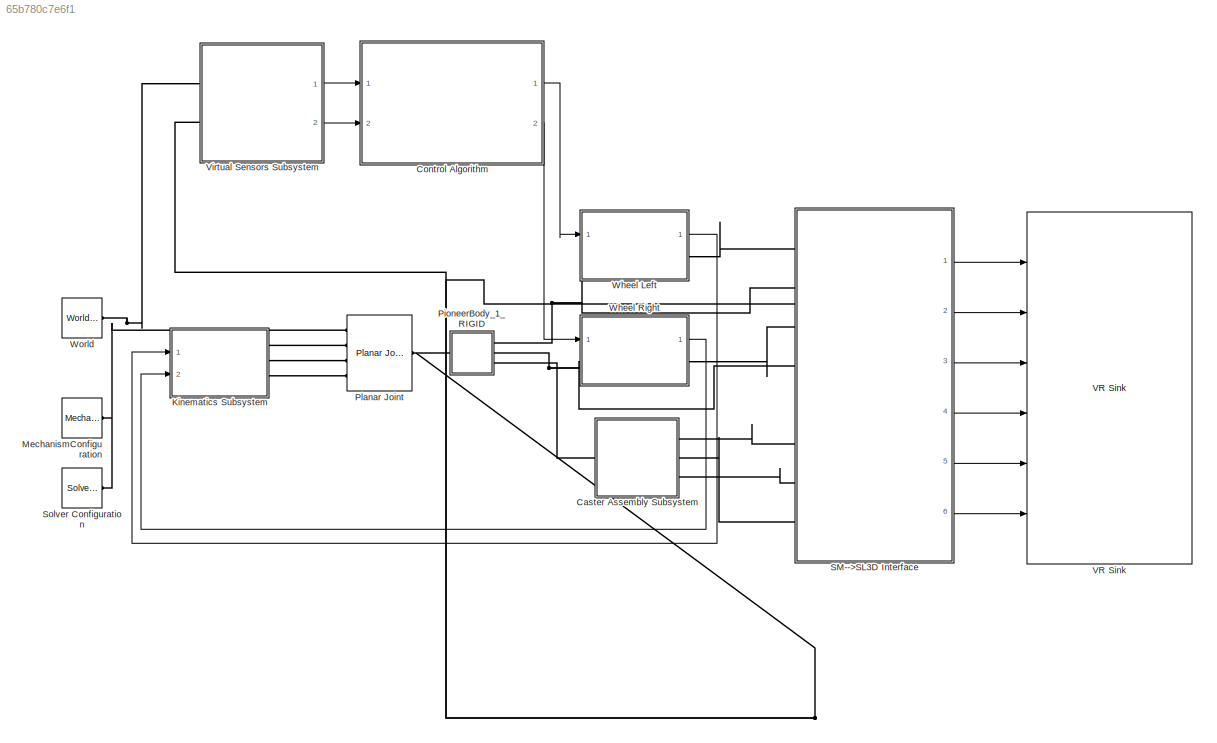
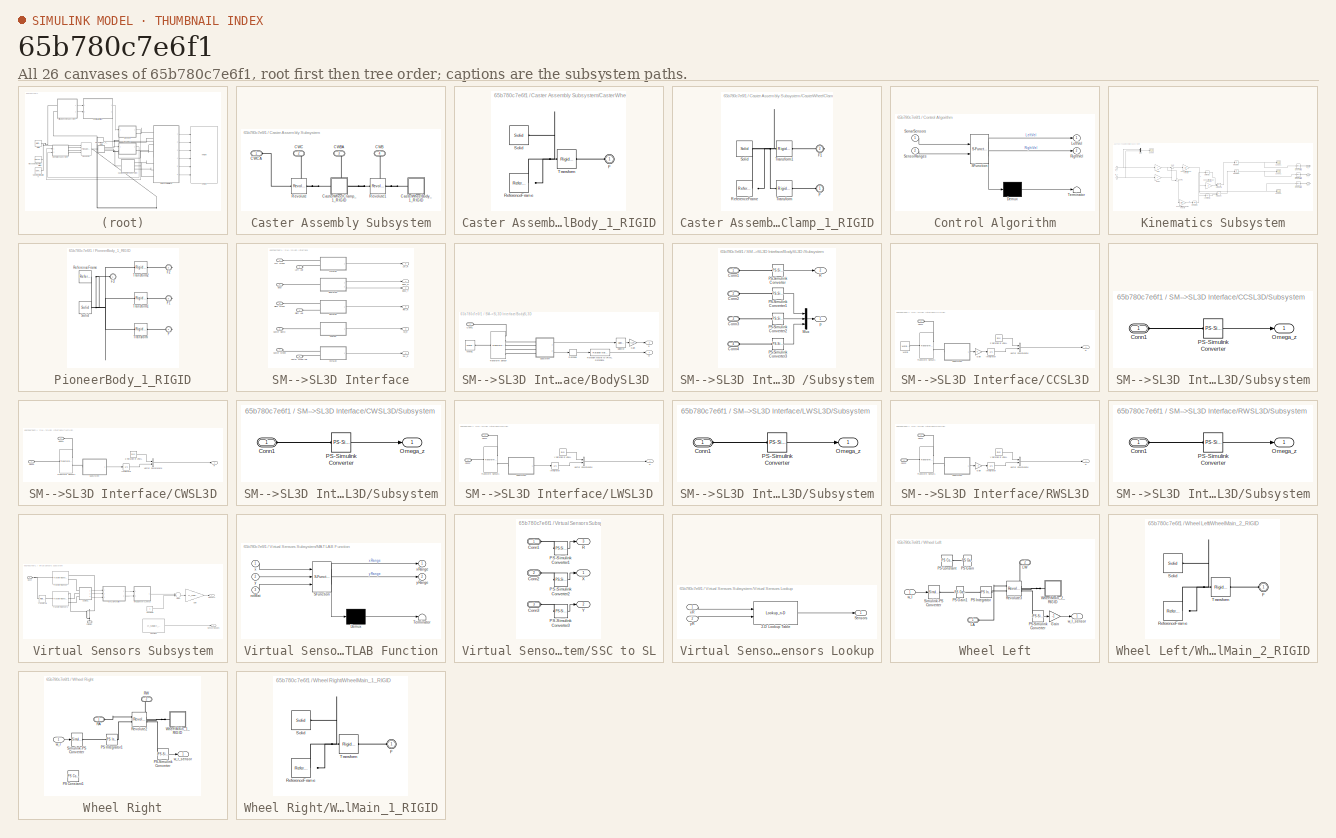
[diagram: thumbnail index - all 26 canvases of the model, root first then tree order]
MODEL slx_65b780c7e6f1
KIND model
CONFIG InitFcn = load WorldLUTData.mat\nr = 0.095; %Wheel radius\nb = 0.33; %Wheel base
BLOCK [SubSystem] Caster Assembly Subsystem
  FunctionWithSeparateData = off
  MaskHideContents = off
  MinAlgLoopOccurrences = off
  Opaque = off
  Ports = [0, 0, 0, 0, 0, 1, 3]
  PropExecContextOutsideSubsystem = off
  RTWSystemCode = Auto
  RequestExecContextInheritance = off
BLOCK [PMIOPort] Caster Assembly Subsystem/CWB
  Port = 4
  Side = Right
BLOCK [PMIOPort] Caster Assembly Subsystem/CWBA
  Port = 3
  Side = Right
BLOCK [PMIOPort] Caster Assembly Subsystem/CWC
  Port = 2
  Side = Right
BLOCK [PMIOPort] Caster Assembly Subsystem/CWCA
  Port = 1
  Side = Left
BLOCK [SubSystem] Caster Assembly Subsystem/CasterWheelBody_1_RIGID
  FunctionWithSeparateData = off
  MaskHideContents = off
  MinAlgLoopOccurrences = off
  Opaque = off
  Ports = [0, 0, 0, 0, 0, 1]
  PropExecContextOutsideSubsystem = off
  RTWSystemCode = Auto
  RequestExecContextInheritance = off
BLOCK [PMIOPort] Caster Assembly Subsystem/CasterWheelBody_1_RIGID/F
  Port = 1
  Side = Left
BLOCK [Reference] Caster Assembly Subsystem/CasterWheelBody_1_RIGID/ReferenceFrame  REF=sm_lib/Frames and
Transforms/Reference
Frame
  BlockFunction = simmechanics.library.frames_transforms.reference_frame
  ClassName = ReferenceFrame
  Ports = [0, 0, 0, 0, 0, 0, 1]
  SourceBlock = sm_lib/Frames and\nTransforms/Reference\nFrame
  SourceType = Reference\nFrame
BLOCK [Reference] Caster Assembly Subsystem/CasterWheelBody_1_RIGID/Solid  REF=sm_lib/Body Elements/Solid
  BlockFunction = simmechanics.library.body_elements.solid
  BrickDimensionUnits = m
  BrickDimensions = [1 1 1]
  CenterOfMass = [0.19849999999999998 -8.254999999999999 -2.0389999999999997]
  CenterOfMassUnits = in
  ClassName = Solid
  CylinderLength = 1
  CylinderLengthUnits = m
  CylinderRadius = 1
  CylinderRadiusUnits = m
  Density = 1000
  DensityBased = on
  DensityUnits = kg/(m^3)
  EllipsoidRadii = [1 1 1]
  EllipsoidRadiiUnits = m
  ExtGeomFileName = CasterWheelBody_Default_sldprt.STL
  ExtGeomFileUnits = in
  ExtrusionCrossSection = [1 1; -1 1; -1 -1; 1 -1]
  ExtrusionCrossSectionUnits = m
  ExtrusionLength = 1
  ExtrusionLengthUnits = m
  GeometryShape = FromFile
  GraphicAmbientColor = [0.15 0.15 0.15 1.0]
  GraphicDiffuseColor = [1 1 1]
  GraphicEmissiveColor = [0.0 0.0 0.0 1.0]
  GraphicOpacity = 0.3
  GraphicShininess = 75
  GraphicSpecularColor = [0.5 0.5 0.5 1.0]
  GraphicType = FromGeometry
  GraphicVisPropType = SimpleVisualProperties
  InertiaType = Custom
  MarkerShape = Sphere
  MarkerSize = 10
  MarkerSizeUnits = m
  Mass = 0.165487
  MassUnits = kg
  MomentsOfInertia = [0.17489149978299948 0.10937255874511745 0.10937255874511745]
  MomentsOfInertiaUnits = kg*in^2
  PolygonNumSides = 3
  PolygonOuterRadius = 1
  PolygonOuterRadiusUnits = m
  Ports = [0, 0, 0, 0, 0, 0, 1]
  ProductsOfInertia = [0 0 0]
  ProductsOfInertiaUnits = kg*in^2
  RectangleSize = [1 1]
  RectangleSizeUnits = m
  RevolutionAngle = 180
  RevolutionAngleUnits = deg
  RevolutionCrossSection = [1 1; 1 -1; 2 -1; 2 1]
  RevolutionCrossSectionUnits = m
  RevolutionExtent = Full
  SourceBlock = sm_lib/Body Elements/Solid
  SourceType = Solid
  SphereRadius = 1
  SphereRadiusUnits = m
BLOCK [Reference] Caster Assembly Subsystem/CasterWheelBody_1_RIGID/Transform  REF=sm_lib/Frames and
Transforms/Rigid
Transform
  BaseAlignAxisA = +Y
  BaseAlignAxisB = +Z
  BlockFunction = simmechanics.library.frames_transforms.rigid_transform
  ClassName = RigidTransform
  FollAlignAxisA = +X
  FollAlignAxisB = +Y
  Ports = [0, 0, 0, 0, 0, 1, 1]
  RotationAngle = 2.0943951047149336
  RotationAngleUnits = rad
  RotationArbitraryAxis = [-0.57735026764134723 -0.57735026996353855 0.57735026996399152]
  RotationMethod = ArbitraryAxis
  RotationStandardAxis = +Z
  SourceBlock = sm_lib/Frames and\nTransforms/Rigid\nTransform
  SourceType = Rigid\nTransform
  TranslationCartesianOffset = [0.028917897723264436 -0.20967707414385042 -0.051790592740231157]
  TranslationLengthUnit = m
  TranslationMethod = Cartesian
  TranslationROffset = 0
  TranslationROffsetUnits = m
  TranslationStandardAxis = +Z
  TranslationStandardOffset = 0
  TranslationThetaOffset = 0
  TranslationThetaOffsetUnits = deg
  TranslationZOffset = 0
  TranslationZOffsetUnits = m
BLOCK [SubSystem] Caster Assembly Subsystem/CasterWheelClamp_1_RIGID
  FunctionWithSeparateData = off
  MaskHideContents = off
  MinAlgLoopOccurrences = off
  Opaque = off
  Ports = [0, 0, 0, 0, 0, 1, 1]
  PropExecContextOutsideSubsystem = off
  RTWSystemCode = Auto
  RequestExecContextInheritance = off
BLOCK [PMIOPort] Caster Assembly Subsystem/CasterWheelClamp_1_RIGID/F
  Port = 1
  Side = Left
BLOCK [PMIOPort] Caster Assembly Subsystem/CasterWheelClamp_1_RIGID/F1
  Port = 2
  Side = Right
BLOCK [Reference] Caster Assembly Subsystem/CasterWheelClamp_1_RIGID/ReferenceFrame  REF=sm_lib/Frames and
Transforms/Reference
Frame
  BlockFunction = simmechanics.library.frames_transforms.reference_frame
  ClassName = ReferenceFrame
  Ports = [0, 0, 0, 0, 0, 0, 1]
  SourceBlock = sm_lib/Frames and\nTransforms/Reference\nFrame
  SourceType = Reference\nFrame
BLOCK [Reference] Caster Assembly Subsystem/CasterWheelClamp_1_RIGID/Solid  REF=sm_lib/Body Elements/Solid
  BlockFunction = simmechanics.library.body_elements.solid
  BrickDimensionUnits = m
  BrickDimensions = [1 1 1]
  CenterOfMass = [0.19850078740157479 -7.4364566929133851 -0.68144881889763764]
  CenterOfMassUnits = in
  ClassName = Solid
  CylinderLength = 1
  CylinderLengthUnits = m
  CylinderRadius = 1
  CylinderRadiusUnits = m
  Density = 1000
  DensityBased = on
  DensityUnits = kg/(m^3)
  EllipsoidRadii = [1 1 1]
  EllipsoidRadiiUnits = m
  ExtGeomFileName = CasterWheelClamp_Default_sldprt.STL
  ExtGeomFileUnits = in
  ExtrusionCrossSection = [1 1; -1 1; -1 -1; 1 -1]
  ExtrusionCrossSectionUnits = m
  ExtrusionLength = 1
  ExtrusionLengthUnits = m
  GeometryShape = FromFile
  GraphicAmbientColor = [0.15 0.15 0.15 1.0]
  GraphicDiffuseColor = [0.866667 0.909804 1]
  GraphicEmissiveColor = [0.0 0.0 0.0 1.0]
  GraphicOpacity = 1
  GraphicShininess = 75
  GraphicSpecularColor = [0.5 0.5 0.5 1.0]
  GraphicType = FromGeometry
  GraphicVisPropType = SimpleVisualProperties
  InertiaType = Custom
  MarkerShape = Sphere
  MarkerSize = 10
  MarkerSizeUnits = m
  Mass = 0.058131799999999997
  MassUnits = kg
  MomentsOfInertia = [0.051037727075454134 0.062244869489738952 0.061463822927645829]
  MomentsOfInertiaUnits = kg*in^2
  PolygonNumSides = 3
  PolygonOuterRadius = 1
  PolygonOuterRadiusUnits = m
  Ports = [0, 0, 0, 0, 0, 0, 1]
  ProductsOfInertia = [0.01403912207824415 8.7254944509888994e-09 1.0837358174716347e-07]
  ProductsOfInertiaUnits = kg*in^2
  RectangleSize = [1 1]
  RectangleSizeUnits = m
  RevolutionAngle = 180
  RevolutionAngleUnits = deg
  RevolutionCrossSection = [1 1; 1 -1; 2 -1; 2 1]
  RevolutionCrossSectionUnits = m
  RevolutionExtent = Full
  SourceBlock = sm_lib/Body Elements/Solid
  SourceType = Solid
  SphereRadius = 1
  SphereRadiusUnits = m
BLOCK [Reference] Caster Assembly Subsystem/CasterWheelClamp_1_RIGID/Transform  REF=sm_lib/Frames and
Transforms/Rigid
Transform
  BaseAlignAxisA = +Y
  BaseAlignAxisB = +Z
  BlockFunction = simmechanics.library.frames_transforms.rigid_transform
  ClassName = RigidTransform
  FollAlignAxisA = +X
  FollAlignAxisB = +Y
  Ports = [0, 0, 0, 0, 0, 1, 1]
  RotationAngle = 0
  RotationAngleUnits = rad
  RotationArbitraryAxis = [0 0 0]
  RotationMethod = ArbitraryAxis
  RotationStandardAxis = +Z
  SourceBlock = sm_lib/Frames and\nTransforms/Rigid\nTransform
  SourceType = Rigid\nTransform
  TranslationCartesianOffset = [0.0050418929299438885 -0.18122900707005232 -0.00099059999999999426]
  TranslationLengthUnit = m
  TranslationMethod = Cartesian
  TranslationROffset = 0
  TranslationROffsetUnits = m
  TranslationStandardAxis = +Z
  TranslationStandardOffset = 0
  TranslationThetaOffset = 0
  TranslationThetaOffsetUnits = deg
  TranslationZOffset = 0
  TranslationZOffsetUnits = m
BLOCK [Reference] Caster Assembly Subsystem/CasterWheelClamp_1_RIGID/Transform1  REF=sm_lib/Frames and
Transforms/Rigid
Transform
  BaseAlignAxisA = +Y
  BaseAlignAxisB = +Z
  BlockFunction = simmechanics.library.frames_transforms.rigid_transform
  ClassName = RigidTransform
  FollAlignAxisA = +X
  FollAlignAxisB = +Y
  Ports = [0, 0, 0, 0, 0, 1, 1]
  RotationAngle = 2.0943951023931957
  RotationAngleUnits = rad
  RotationArbitraryAxis = [-0.57735026918962573 -0.57735026918962584 0.57735026918962573]
  RotationMethod = ArbitraryAxis
  RotationStandardAxis = +Z
  SourceBlock = sm_lib/Frames and\nTransforms/Rigid\nTransform
  SourceType = Rigid\nTransform
  TranslationCartesianOffset = [0.0289179 -0.209677 -0.051790599999999999]
  TranslationLengthUnit = m
  TranslationMethod = Cartesian
  TranslationROffset = 0
  TranslationROffsetUnits = m
  TranslationStandardAxis = +Z
  TranslationStandardOffset = 0
  TranslationThetaOffset = 0
  TranslationThetaOffsetUnits = deg
  TranslationZOffset = 0
  TranslationZOffsetUnits = m
BLOCK [Reference] Caster Assembly Subsystem/Revolute  REF=sm_lib/Joints/Revolute Joint
  BlockFunction = simmechanics.library.joints.revolute_joint
  ClassName = RevoluteJoint
  ConstraintWrenchDir = FollowerOnBase
  ConstraintWrenchFrame = BaseFrame
  DampingCoefficient = 0
  DampingCoefficientUnits = m*s*N/rad
  EquilibriumPosition = 0
  EquilibriumPositionUnits = rad
  MotionActuationMode = ComputedMotion
  Ports = [0, 0, 0, 0, 0, 1, 1]
  PositionTargetPriority = Low
  PositionTargetSpecify = on
  PositionTargetValue = 0.2241061767810246
  PositionTargetValueUnits = deg
  SenseAcceleration = off
  SenseConstraintForceX = off
  SenseConstraintForceY = off
  SenseConstraintForceZ = off
  SenseConstraintTorqueX = off
  SenseConstraintTorqueY = off
  SenseConstraintTorqueZ = off
  SensePosition = off
  SenseTorqueForce = off
  SenseVelocity = off
  SourceBlock = sm_lib/Joints/Revolute Joint
  SourceType = Revolute Joint
  SpringStiffness = 0
  SpringStiffnessUnits = m*N/rad
  TorqueActuationMode = NoTorque
  VelocityTargetPriority = High
  VelocityTargetSpecify = off
  VelocityTargetValue = 0
  VelocityTargetValueUnits = deg/s
BLOCK [Reference] Caster Assembly Subsystem/Revolute1  REF=sm_lib/Joints/Revolute Joint
  BlockFunction = simmechanics.library.joints.revolute_joint
  ClassName = RevoluteJoint
  ConstraintWrenchDir = FollowerOnBase
  ConstraintWrenchFrame = BaseFrame
  DampingCoefficient = 0
  DampingCoefficientUnits = m*s*N/rad
  EquilibriumPosition = 0
  EquilibriumPositionUnits = rad
  MotionActuationMode = ComputedMotion
  Ports = [0, 0, 0, 0, 0, 1, 1]
  PositionTargetPriority = Low
  PositionTargetSpecify = on
  PositionTargetValue = 0.06600758954149441
  PositionTargetValueUnits = deg
  SenseAcceleration = off
  SenseConstraintForceX = off
  SenseConstraintForceY = off
  SenseConstraintForceZ = off
  SenseConstraintTorqueX = off
  SenseConstraintTorqueY = off
  SenseConstraintTorqueZ = off
  SensePosition = off
  SenseTorqueForce = off
  SenseVelocity = off
  SourceBlock = sm_lib/Joints/Revolute Joint
  SourceType = Revolute Joint
  SpringStiffness = 0
  SpringStiffnessUnits = m*N/rad
  TorqueActuationMode = NoTorque
  VelocityTargetPriority = High
  VelocityTargetSpecify = off
  VelocityTargetValue = 0
  VelocityTargetValueUnits = deg/s
BLOCK [SubSystem] Control Algorithm
  ErrorFcn = Stateflow.Translate.translate
  FunctionWithSeparateData = off
  MaskHideContents = off
  MinAlgLoopOccurrences = off
  Opaque = off
  PermitHierarchicalResolution = ExplicitOnly
  Ports = [2, 2]
  PropExecContextOutsideSubsystem = off
  RTWSystemCode = Auto
  RequestExecContextInheritance = off
  SFBlockType = Chart
  TreatAsAtomicUnit = on
BLOCK [Demux] Control Algorithm/ Demux 
  Outputs = 1
  Ports = [1, 1]
BLOCK [S-Function] Control Algorithm/ SFunction 
  EnableBusSupport = on
  FunctionName = sf_sfun
  Parameters = v0
  PortCounts = [2 3]
  Ports = [2, 3]
  Tag = Stateflow S-Function Controller_Pioneer3DXAssembly 1
BLOCK [Terminator] Control Algorithm/ Terminator 
BLOCK [Outport] Control Algorithm/LeftVel
  IconDisplay = Port number
BLOCK [Outport] Control Algorithm/RightVel
  IconDisplay = Port number
  Port = 2
BLOCK [Inport] Control Algorithm/SensorRanges
  IconDisplay = Port number
  Port = 2
BLOCK [Inport] Control Algorithm/SonarSensors
  IconDisplay = Port number
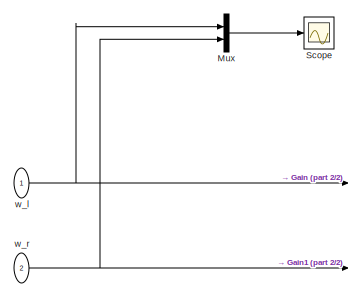
[diagram: Kinematics Subsystem - part 1/2, top left region]
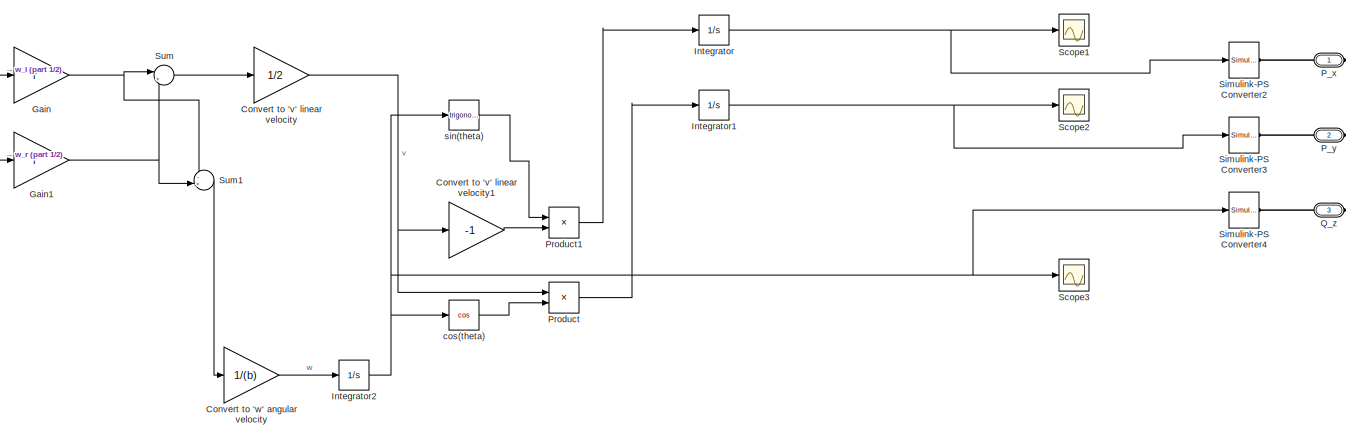
[diagram: Kinematics Subsystem - part 2/2, most of the canvas]
BLOCK [SubSystem] Kinematics Subsystem
  FunctionWithSeparateData = off
  MaskHideContents = off
  MinAlgLoopOccurrences = off
  Opaque = off
  Ports = [2, 0, 0, 0, 0, 0, 3]
  PropExecContextOutsideSubsystem = off
  RTWSystemCode = Auto
  RequestExecContextInheritance = off
BLOCK [Gain] Kinematics Subsystem/Convert to 'v' linear velocity
  Gain = 1/2
  OutDataTypeStr = Inherit: Inherit via internal rule
  ParamDataTypeStr = Inherit: Inherit via internal rule
  SaturateOnIntegerOverflow = off
BLOCK [Gain] Kinematics Subsystem/Convert to 'v' linear velocity1
  Gain = -1
  OutDataTypeStr = Inherit: Inherit via internal rule
  ParamDataTypeStr = Inherit: Inherit via internal rule
  SaturateOnIntegerOverflow = off
BLOCK [Gain] Kinematics Subsystem/Convert to 'w' angular velocity
  Gain = 1/(b)
  OutDataTypeStr = Inherit: Inherit via internal rule
  ParamDataTypeStr = Inherit: Inherit via internal rule
  SaturateOnIntegerOverflow = off
BLOCK [Gain] Kinematics Subsystem/Gain
  Gain = r
  OutDataTypeStr = Inherit: Inherit via internal rule
  ParamDataTypeStr = Inherit: Inherit via internal rule
  SaturateOnIntegerOverflow = off
BLOCK [Gain] Kinematics Subsystem/Gain1
  Gain = r
  OutDataTypeStr = Inherit: Inherit via internal rule
  ParamDataTypeStr = Inherit: Inherit via internal rule
  SaturateOnIntegerOverflow = off
BLOCK [Integrator] Kinematics Subsystem/Integrator
  Ports = [1, 1]
BLOCK [Integrator] Kinematics Subsystem/Integrator1
  Ports = [1, 1]
BLOCK [Integrator] Kinematics Subsystem/Integrator2
  Ports = [1, 1]
BLOCK [Mux] Kinematics Subsystem/Mux
  DisplayOption = bar
  Inputs = 2
  Ports = [2, 1]
BLOCK [PMIOPort] Kinematics Subsystem/P_x
  Port = 1
  Side = Right
BLOCK [PMIOPort] Kinematics Subsystem/P_y
  Port = 2
  Side = Right
BLOCK [Product] Kinematics Subsystem/Product
  InputSameDT = off
  OutDataTypeStr = Inherit: Inherit via internal rule
  Ports = [2, 1]
  RndMeth = Floor
  SaturateOnIntegerOverflow = off
BLOCK [Product] Kinematics Subsystem/Product1
  InputSameDT = off
  OutDataTypeStr = Inherit: Inherit via internal rule
  Ports = [2, 1]
  RndMeth = Floor
  SaturateOnIntegerOverflow = off
BLOCK [PMIOPort] Kinematics Subsystem/Q_z
  Port = 3
  Side = Right
BLOCK [Scope] Kinematics Subsystem/Scope
  DataFormat = StructureWithTime
  Floating = off
  NumInputPorts = 1
  Ports = [1]
  SampleTime = 0
  ShowLegends = off
  YMax = 0.11
  YMin = -0.11
BLOCK [Scope] Kinematics Subsystem/Scope1
  DataFormat = StructureWithTime
  Floating = off
  NumInputPorts = 1
  Ports = [1]
  SampleTime = 0
  SaveName = ScopeData2
  ShowLegends = off
BLOCK [Scope] Kinematics Subsystem/Scope2
  DataFormat = StructureWithTime
  Floating = off
  NumInputPorts = 1
  Ports = [1]
  SampleTime = 0
  SaveName = ScopeData3
  ShowLegends = off
BLOCK [Scope] Kinematics Subsystem/Scope3
  DataFormat = StructureWithTime
  Floating = off
  NumInputPorts = 1
  Ports = [1]
  SampleTime = 0
  SaveName = ScopeData4
  ShowLegends = off
BLOCK [Reference] Kinematics Subsystem/Simulink-PS Converter2  REF=nesl_utility/Simulink-PS
Converter
  AffineConversion = off
  Frequencies = []
  InputFilterTimeConstant = 0.01
  InputFiltering = on
  LeftPortType = input
  NoiseDistribution = none
  NoiseParameters = []
  PhysicalDomain = network_engine_domain
  Ports = [1, 0, 0, 0, 0, 0, 1]
  PseudoPeriodic = off
  RightPortType = output
  SimscapeFilterOrder = 2
  SourceBlock = nesl_utility/Simulink-PS\nConverter
  SourceType = Simulink-PS\nConverter
  SubClassName = ps_input
  UdotUserProvided = 1
  Unit = 1
BLOCK [Reference] Kinematics Subsystem/Simulink-PS Converter3  REF=nesl_utility/Simulink-PS
Converter
  AffineConversion = off
  Frequencies = []
  InputFilterTimeConstant = 0.01
  InputFiltering = on
  LeftPortType = input
  NoiseDistribution = none
  NoiseParameters = []
  PhysicalDomain = network_engine_domain
  Ports = [1, 0, 0, 0, 0, 0, 1]
  PseudoPeriodic = off
  RightPortType = output
  SimscapeFilterOrder = 2
  SourceBlock = nesl_utility/Simulink-PS\nConverter
  SourceType = Simulink-PS\nConverter
  SubClassName = ps_input
  UdotUserProvided = 1
  Unit = 1
BLOCK [Reference] Kinematics Subsystem/Simulink-PS Converter4  REF=nesl_utility/Simulink-PS
Converter
  AffineConversion = off
  Frequencies = []
  InputFilterTimeConstant = 0.01
  InputFiltering = on
  LeftPortType = input
  NoiseDistribution = none
  NoiseParameters = []
  PhysicalDomain = network_engine_domain
  Ports = [1, 0, 0, 0, 0, 0, 1]
  PseudoPeriodic = off
  RightPortType = output
  SimscapeFilterOrder = 2
  SourceBlock = nesl_utility/Simulink-PS\nConverter
  SourceType = Simulink-PS\nConverter
  SubClassName = ps_input
  UdotUserProvided = 1
  Unit = 1
BLOCK [Sum] Kinematics Subsystem/Sum
  IconShape = round
  InputSameDT = off
  Inputs = |++
  OutDataTypeStr = Inherit: Inherit via internal rule
  Ports = [2, 1]
  SaturateOnIntegerOverflow = off
BLOCK [Sum] Kinematics Subsystem/Sum1
  IconShape = round
  InputSameDT = off
  Inputs = -+|
  OutDataTypeStr = Inherit: Inherit via internal rule
  Ports = [2, 1]
  SaturateOnIntegerOverflow = off
BLOCK [Trigonometry] Kinematics Subsystem/cos(theta)
  Operator = cos
  Ports = [1, 1]
BLOCK [Trigonometry] Kinematics Subsystem/sin(theta)
  Ports = [1, 1]
BLOCK [Inport] Kinematics Subsystem/w_l
  IconDisplay = Port number
BLOCK [Inport] Kinematics Subsystem/w_r
  IconDisplay = Port number
  Port = 2
BLOCK [Reference] MechanismConfiguration  REF=sm_lib/Utilities/Mechanism
Configuration
  AllowGravitySignal = off
  BlockFunction = simmechanics.library.utilities.mechanism_configuration
  ClassName = MechanismConfiguration
  GravityUnits = m/s^2
  GravityVector = [0 0 -9.81]
  LinearizationDelta = 0.001
  Ports = [0, 0, 0, 0, 0, 0, 1]
  SourceBlock = sm_lib/Utilities/Mechanism\nConfiguration
  SourceType = Mechanism\nConfiguration
BLOCK [SubSystem] PioneerBody_1_RIGID
  FunctionWithSeparateData = off
  MaskHideContents = off
  MinAlgLoopOccurrences = off
  Opaque = off
  Ports = [0, 0, 0, 0, 0, 1, 3]
  PropExecContextOutsideSubsystem = off
  RTWSystemCode = Auto
  RequestExecContextInheritance = off
BLOCK [PMIOPort] PioneerBody_1_RIGID/F
  Port = 4
  Side = Right
BLOCK [PMIOPort] PioneerBody_1_RIGID/F1
  Port = 3
  Side = Right
BLOCK [PMIOPort] PioneerBody_1_RIGID/F2
  Port = 2
  Side = Right
BLOCK [PMIOPort] PioneerBody_1_RIGID/F3
  Port = 1
  Side = Left
BLOCK [Reference] PioneerBody_1_RIGID/ReferenceFrame  REF=sm_lib/Frames and
Transforms/Reference
Frame
  BlockFunction = simmechanics.library.frames_transforms.reference_frame
  ClassName = ReferenceFrame
  Ports = [0, 0, 0, 0, 0, 0, 1]
  SourceBlock = sm_lib/Frames and\nTransforms/Reference\nFrame
  SourceType = Reference\nFrame
BLOCK [Reference] PioneerBody_1_RIGID/Solid  REF=sm_lib/Body Elements/Solid
  BlockFunction = simmechanics.library.body_elements.solid
  BrickDimensionUnits = m
  BrickDimensions = [1 1 1]
  CenterOfMass = [0.18851259842519683 -1.4327086614173226 1.4471535433070863]
  CenterOfMassUnits = in
  ClassName = Solid
  CylinderLength = 1
  CylinderLengthUnits = m
  CylinderRadius = 1
  CylinderRadiusUnits = m
  Density = 1000
  DensityBased = on
  DensityUnits = kg/(m^3)
  EllipsoidRadii = [1 1 1]
  EllipsoidRadiiUnits = m
  ExtGeomFileName = PioneerBody_Default_sldprt.STL
  ExtGeomFileUnits = in
  ExtrusionCrossSection = [1 1; -1 1; -1 -1; 1 -1]
  ExtrusionCrossSectionUnits = m
  ExtrusionLength = 1
  ExtrusionLengthUnits = m
  GeometryShape = FromFile
  GraphicAmbientColor = [0.15 0.15 0.15 1.0]
  GraphicDiffuseColor = [0.866667 0.909804 1]
  GraphicEmissiveColor = [0.0 0.0 0.0 1.0]
  GraphicOpacity = 1
  GraphicShininess = 75
  GraphicSpecularColor = [0.5 0.5 0.5 1.0]
  GraphicType = FromGeometry
  GraphicVisPropType = SimpleVisualProperties
  InertiaType = Custom
  MarkerShape = Sphere
  MarkerSize = 10
  MarkerSizeUnits = m
  Mass = 6.1597799999999996
  MassUnits = kg
  MomentsOfInertia = [221.24124248248489 141.00548701097398 265.04278008556008]
  MomentsOfInertiaUnits = kg*in^2
  PolygonNumSides = 3
  PolygonOuterRadius = 1
  PolygonOuterRadiusUnits = m
  Ports = [0, 0, 0, 0, 0, 0, 1]
  ProductsOfInertia = [-5.571098642197283 -0.58057691115382204 1.1589822679645356]
  ProductsOfInertiaUnits = kg*in^2
  RectangleSize = [1 1]
  RectangleSizeUnits = m
  RevolutionAngle = 180
  RevolutionAngleUnits = deg
  RevolutionCrossSection = [1 1; 1 -1; 2 -1; 2 1]
  RevolutionCrossSectionUnits = m
  RevolutionExtent = Full
  SourceBlock = sm_lib/Body Elements/Solid
  SourceType = Solid
  SphereRadius = 1
  SphereRadiusUnits = m
BLOCK [Reference] PioneerBody_1_RIGID/Transform  REF=sm_lib/Frames and
Transforms/Rigid
Transform
  BaseAlignAxisA = +Y
  BaseAlignAxisB = +Z
  BlockFunction = simmechanics.library.frames_transforms.rigid_transform
  ClassName = RigidTransform
  FollAlignAxisA = +X
  FollAlignAxisB = +Y
  Ports = [0, 0, 0, 0, 0, 1, 1]
  RotationAngle = 0
  RotationAngleUnits = rad
  RotationArbitraryAxis = [0 0 0]
  RotationMethod = ArbitraryAxis
  RotationStandardAxis = +Z
  SourceBlock = sm_lib/Frames and\nTransforms/Rigid\nTransform
  SourceType = Rigid\nTransform
  TranslationCartesianOffset = [0.0050419000000000002 -0.181229 -0.0009905999999999999]
  TranslationLengthUnit = m
  TranslationMethod = Cartesian
  TranslationROffset = 0
  TranslationROffsetUnits = m
  TranslationStandardAxis = +Z
  TranslationStandardOffset = 0
  TranslationThetaOffset = 0
  TranslationThetaOffsetUnits = deg
  TranslationZOffset = 0
  TranslationZOffsetUnits = m
BLOCK [Reference] PioneerBody_1_RIGID/Transform1  REF=sm_lib/Frames and
Transforms/Rigid
Transform
  BaseAlignAxisA = +Y
  BaseAlignAxisB = +Z
  BlockFunction = simmechanics.library.frames_transforms.rigid_transform
  ClassName = RigidTransform
  FollAlignAxisA = +X
  FollAlignAxisB = +Y
  Ports = [0, 0, 0, 0, 0, 1, 1]
  RotationAngle = 2.0943951023931957
  RotationAngleUnits = rad
  RotationArbitraryAxis = [-0.57735026918962573 -0.57735026918962584 0.57735026918962573]
  RotationMethod = ArbitraryAxis
  RotationStandardAxis = +Z
  SourceBlock = sm_lib/Frames and\nTransforms/Rigid\nTransform
  SourceType = Rigid\nTransform
  TranslationCartesianOffset = [0.189166 2.4979999999999999e-16 0.0016256]
  TranslationLengthUnit = m
  TranslationMethod = Cartesian
  TranslationROffset = 0
  TranslationROffsetUnits = m
  TranslationStandardAxis = +Z
  TranslationStandardOffset = 0
  TranslationThetaOffset = 0
  TranslationThetaOffsetUnits = deg
  TranslationZOffset = 0
  TranslationZOffsetUnits = m
BLOCK [Reference] PioneerBody_1_RIGID/Transform2  REF=sm_lib/Frames and
Transforms/Rigid
Transform
  BaseAlignAxisA = +Y
  BaseAlignAxisB = +Z
  BlockFunction = simmechanics.library.frames_transforms.rigid_transform
  ClassName = RigidTransform
  FollAlignAxisA = +X
  FollAlignAxisB = +Y
  Ports = [0, 0, 0, 0, 0, 1, 1]
  RotationAngle = 2.0943951023931953
  RotationAngleUnits = rad
  RotationArbitraryAxis = [0.57735026918962562 0.57735026918962562 0.57735026918962595]
  RotationMethod = ArbitraryAxis
  RotationStandardAxis = +Z
  SourceBlock = sm_lib/Frames and\nTransforms/Rigid\nTransform
  SourceType = Rigid\nTransform
  TranslationCartesianOffset = [-0.17908299999999999 0 0.0016256]
  TranslationLengthUnit = m
  TranslationMethod = Cartesian
  TranslationROffset = 0
  TranslationROffsetUnits = m
  TranslationStandardAxis = +Z
  TranslationStandardOffset = 0
  TranslationThetaOffset = 0
  TranslationThetaOffsetUnits = deg
  TranslationZOffset = 0
  TranslationZOffsetUnits = m
BLOCK [Reference] Planar Joint  REF=sm_lib/Joints/Planar Joint
  BlockFunction = simmechanics.library.joints.planar_joint
  ClassName = PlanarJoint
  ConstraintWrenchDir = FollowerOnBase
  ConstraintWrenchFrame = BaseFrame
  Ports = [0, 0, 0, 0, 0, 4, 1]
  PxDampingCoefficient = 0
  PxDampingCoefficientUnits = N/(m/s)
  PxEquilibriumPosition = 0
  PxEquilibriumPositionUnits = m
  PxMotionActuationMode = InputMotion
  PxPositionTargetPriority = High
  PxPositionTargetSpecify = off
  PxPositionTargetValue = 0
  PxPositionTargetValueUnits = m
  PxSenseAcceleration = off
  PxSensePosition = off
  PxSenseTorqueForce = off
  PxSenseVelocity = off
  PxSpringStiffness = 0
  PxSpringStiffnessUnits = N/m
  PxTorqueActuationMode = ComputedTorque
  PxVelocityTargetPriority = High
  PxVelocityTargetSpecify = off
  PxVelocityTargetValue = 0
  PxVelocityTargetValueUnits = m/s
  PyDampingCoefficient = 0
  PyDampingCoefficientUnits = N/(m/s)
  PyEquilibriumPosition = 0
  PyEquilibriumPositionUnits = m
  PyMotionActuationMode = InputMotion
  PyPositionTargetPriority = High
  PyPositionTargetSpecify = off
  PyPositionTargetValue = 0
  PyPositionTargetValueUnits = m
  PySenseAcceleration = off
  PySensePosition = off
  PySenseTorqueForce = off
  PySenseVelocity = off
  PySpringStiffness = 0
  PySpringStiffnessUnits = N/m
  PyTorqueActuationMode = ComputedTorque
  PyVelocityTargetPriority = High
  PyVelocityTargetSpecify = off
  PyVelocityTargetValue = 0
  PyVelocityTargetValueUnits = m/s
  RzDampingCoefficient = 0
  RzDampingCoefficientUnits = N*m/(deg/s)
  RzEquilibriumPosition = 0
  RzEquilibriumPositionUnits = deg
  RzMotionActuationMode = InputMotion
  RzPositionTargetPriority = High
  RzPositionTargetSpecify = off
  RzPositionTargetValue = 0
  RzPositionTargetValueUnits = deg
  RzSenseAcceleration = off
  RzSensePosition = off
  RzSenseTorqueForce = off
  RzSenseVelocity = off
  RzSpringStiffness = 0
  RzSpringStiffnessUnits = N*m/deg
  RzTorqueActuationMode = ComputedTorque
  RzVelocityTargetPriority = High
  RzVelocityTargetSpecify = off
  RzVelocityTargetValue = 0
  RzVelocityTargetValueUnits = deg/s
  SenseConstraintForceX = off
  SenseConstraintForceY = off
  SenseConstraintForceZ = off
  SenseConstraintTorqueX = off
  SenseConstraintTorqueY = off
  SenseConstraintTorqueZ = off
  SourceBlock = sm_lib/Joints/Planar Joint
  SourceType = Planar Joint
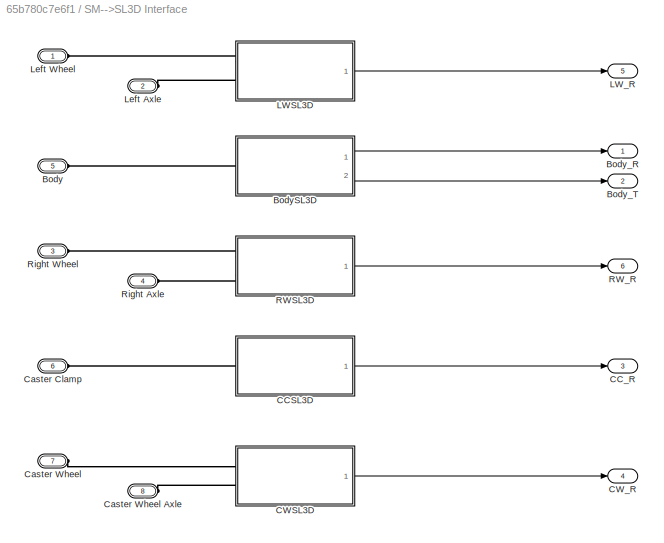
BLOCK [SubSystem] SM-->SL3D Interface
  FunctionWithSeparateData = off
  MaskHideContents = off
  MinAlgLoopOccurrences = off
  Opaque = off
  Ports = [0, 6, 0, 0, 0, 8]
  PropExecContextOutsideSubsystem = off
  RTWSystemCode = Auto
  RequestExecContextInheritance = off
BLOCK [PMIOPort] SM-->SL3D Interface/Body
  Port = 5
  Side = Left
BLOCK [SubSystem] SM-->SL3D Interface/BodySL3D 
  FunctionWithSeparateData = off
  MaskHideContents = off
  MinAlgLoopOccurrences = off
  Opaque = off
  Ports = [0, 2, 0, 0, 0, 1]
  PropExecContextOutsideSubsystem = off
  RTWSystemCode = Auto
  RequestExecContextInheritance = off
BLOCK [PMIOPort] SM-->SL3D Interface/BodySL3D /Conn1
  Port = 1
  Side = Left
BLOCK [Gain] SM-->SL3D Interface/BodySL3D /Gain
  Gain = [-1 1 0]
  OutDataTypeStr = Inherit: Inherit via internal rule
  ParamDataTypeStr = Inherit: Inherit via internal rule
  SaturateOnIntegerOverflow = off
BLOCK [Outport] SM-->SL3D Interface/BodySL3D /R
  IconDisplay = Port number
BLOCK [Reshape] SM-->SL3D Interface/BodySL3D /Reshape
  OutputDimensionality = Customize
  OutputDimensions = [3 3]
  Ports = [1, 1]
BLOCK [Reference] SM-->SL3D Interface/BodySL3D /Rotation Matrix to VRML Rotation1  REF=vrlib/Utilities/Rotation Matrix
to VRML Rotation
  Ports = [1, 1]
  SourceBlock = vrlib/Utilities/Rotation Matrix\nto VRML Rotation
  SourceType = Rotation Matrix to VRML Rotation
  maxzero = 1e-12
BLOCK [Selector] SM-->SL3D Interface/BodySL3D /Selector
  IndexOptions = Index vector (dialog)
  Indices = [2 1 3]
  InputPortWidth = 3
  OutputSizes = 1
  Ports = [1, 1]
BLOCK [SubSystem] SM-->SL3D Interface/BodySL3D /Subsystem
  FunctionWithSeparateData = off
  MaskHideContents = off
  MinAlgLoopOccurrences = off
  Opaque = off
  Ports = [0, 2, 0, 0, 0, 4]
  PropExecContextOutsideSubsystem = off
  RTWSystemCode = Auto
  RequestExecContextInheritance = off
BLOCK [PMIOPort] SM-->SL3D Interface/BodySL3D /Subsystem/Conn1
  Port = 1
  Side = Left
BLOCK [PMIOPort] SM-->SL3D Interface/BodySL3D /Subsystem/Conn2
  Port = 2
  Side = Left
BLOCK [PMIOPort] SM-->SL3D Interface/BodySL3D /Subsystem/Conn3
  Port = 3
  Side = Left
BLOCK [PMIOPort] SM-->SL3D Interface/BodySL3D /Subsystem/Conn4
  Port = 4
  Side = Left
BLOCK [Mux] SM-->SL3D Interface/BodySL3D /Subsystem/Mux
  DisplayOption = bar
  Inputs = 3
  Ports = [3, 1]
BLOCK [Reference] SM-->SL3D Interface/BodySL3D /Subsystem/PS-Simulink Converter  REF=nesl_utility/PS-Simulink
Converter
  AffineConversion = off
  Frequencies = []
  LeftPortType = input
  PhysicalDomain = network_engine_domain
  Ports = [0, 1, 0, 0, 0, 1]
  PseudoPeriodic = off
  RightPortType = output
  SourceBlock = nesl_utility/PS-Simulink\nConverter
  SourceType = PS-Simulink\nConverter
  SubClassName = ps_output
  Unit = 1
BLOCK [Reference] SM-->SL3D Interface/BodySL3D /Subsystem/PS-Simulink Converter1  REF=nesl_utility/PS-Simulink
Converter
  AffineConversion = off
  Frequencies = []
  LeftPortType = input
  PhysicalDomain = network_engine_domain
  Ports = [0, 1, 0, 0, 0, 1]
  PseudoPeriodic = off
  RightPortType = output
  SourceBlock = nesl_utility/PS-Simulink\nConverter
  SourceType = PS-Simulink\nConverter
  SubClassName = ps_output
  Unit = 1
BLOCK [Reference] SM-->SL3D Interface/BodySL3D /Subsystem/PS-Simulink Converter2  REF=nesl_utility/PS-Simulink
Converter
  AffineConversion = off
  Frequencies = []
  LeftPortType = input
  PhysicalDomain = network_engine_domain
  Ports = [0, 1, 0, 0, 0, 1]
  PseudoPeriodic = off
  RightPortType = output
  SourceBlock = nesl_utility/PS-Simulink\nConverter
  SourceType = PS-Simulink\nConverter
  SubClassName = ps_output
  Unit = 1
BLOCK [Reference] SM-->SL3D Interface/BodySL3D /Subsystem/PS-Simulink Converter3  REF=nesl_utility/PS-Simulink
Converter
  AffineConversion = off
  Frequencies = []
  LeftPortType = input
  PhysicalDomain = network_engine_domain
  Ports = [0, 1, 0, 0, 0, 1]
  PseudoPeriodic = off
  RightPortType = output
  SourceBlock = nesl_utility/PS-Simulink\nConverter
  SourceType = PS-Simulink\nConverter
  SubClassName = ps_output
  Unit = 1
BLOCK [Outport] SM-->SL3D Interface/BodySL3D /Subsystem/R
  IconDisplay = Port number
  Port = 2
BLOCK [Outport] SM-->SL3D Interface/BodySL3D /Subsystem/p
  IconDisplay = Port number
BLOCK [Reference] SM-->SL3D Interface/BodySL3D /Transform Sensor  REF=sm_lib/Frames and
Transforms/Transform
Sensor
  BlockFunction = simmechanics.library.frames_transforms.transform_sensor
  ClassName = TransformSensor
  MeasurementFrame = World
  Ports = [0, 0, 0, 0, 0, 1, 5]
  SenseAlpha1 = off
  SenseAlpha2 = off
  SenseAlpha3 = off
  SenseAlphaX = off
  SenseAlphaY = off
  SenseAlphaZ = off
  SenseAngle = off
  SenseAngle1 = off
  SenseAngle2 = off
  SenseAngle3 = off
  SenseAxis = off
  SenseAzim = off
  SenseAzimDDot = off
  SenseAzimDot = off
  SenseDist = off
  SenseDistDDot = off
  SenseDistDot = off
  SenseInc = off
  SenseIncDDot = off
  SenseIncDot = off
  SenseOmega1 = off
  SenseOmega2 = off
  SenseOmega3 = off
  SenseOmegaX = off
  SenseOmegaY = off
  SenseOmegaZ = off
  SenseQ = off
  SenseQDDot = off
  SenseQDot = off
  SenseR = on
  SenseRDDot = off
  SenseRDot = off
  SenseRad = off
  SenseRadDDot = off
  SenseRadDot = off
  SenseX = on
  SenseXDDot = off
  SenseXDot = off
  SenseY = on
  SenseYDDot = off
  SenseYDot = off
  SenseZ = on
  SenseZDDot = off
  SenseZDot = off
  SourceBlock = sm_lib/Frames and\nTransforms/Transform\nSensor
  SourceType = Transform\nSensor
BLOCK [Reference] SM-->SL3D Interface/BodySL3D /World1  REF=sm_lib/Frames and
Transforms/World Frame
  BlockFunction = simmechanics.library.frames_transforms.world_frame
  ClassName = WorldFrame
  Ports = [0, 0, 0, 0, 0, 0, 1]
  SourceBlock = sm_lib/Frames and\nTransforms/World Frame
  SourceType = World Frame
BLOCK [Outport] SM-->SL3D Interface/BodySL3D /p
  IconDisplay = Port number
  Port = 2
BLOCK [Outport] SM-->SL3D Interface/Body_R
  IconDisplay = Port number
BLOCK [Outport] SM-->SL3D Interface/Body_T
  IconDisplay = Port number
  Port = 2
BLOCK [SubSystem] SM-->SL3D Interface/CCSL3D
  FunctionWithSeparateData = off
  MaskHideContents = off
  MinAlgLoopOccurrences = off
  Opaque = off
  Ports = [0, 1, 0, 0, 0, 1]
  PropExecContextOutsideSubsystem = off
  RTWSystemCode = Auto
  RequestExecContextInheritance = off
BLOCK [PMIOPort] SM-->SL3D Interface/CCSL3D/Conn1
  Port = 1
  Side = Left
BLOCK [Gain] SM-->SL3D Interface/CCSL3D/Gain
  OutDataTypeStr = Inherit: Inherit via internal rule
  ParamDataTypeStr = Inherit: Inherit via internal rule
  SaturateOnIntegerOverflow = off
BLOCK [Integrator] SM-->SL3D Interface/CCSL3D/Integrator
  Ports = [1, 1]
BLOCK [Outport] SM-->SL3D Interface/CCSL3D/R
  IconDisplay = Port number
BLOCK [SubSystem] SM-->SL3D Interface/CCSL3D/Subsystem
  FunctionWithSeparateData = off
  MaskHideContents = off
  MinAlgLoopOccurrences = off
  Opaque = off
  Ports = [0, 1, 0, 0, 0, 1]
  PropExecContextOutsideSubsystem = off
  RTWSystemCode = Auto
  RequestExecContextInheritance = off
BLOCK [PMIOPort] SM-->SL3D Interface/CCSL3D/Subsystem/Conn1
  Port = 1
  Side = Left
BLOCK [Outport] SM-->SL3D Interface/CCSL3D/Subsystem/Omega_z
  IconDisplay = Port number
BLOCK [Reference] SM-->SL3D Interface/CCSL3D/Subsystem/PS-Simulink Converter  REF=nesl_utility/PS-Simulink
Converter
  AffineConversion = off
  Frequencies = []
  LeftPortType = input
  PhysicalDomain = network_engine_domain
  Ports = [0, 1, 0, 0, 0, 1]
  PseudoPeriodic = off
  RightPortType = output
  SourceBlock = nesl_utility/PS-Simulink\nConverter
  SourceType = PS-Simulink\nConverter
  SubClassName = ps_output
  Unit = 1
BLOCK [Reference] SM-->SL3D Interface/CCSL3D/Transform Sensor1  REF=sm_lib/Frames and
Transforms/Transform
Sensor
  BlockFunction = simmechanics.library.frames_transforms.transform_sensor
  ClassName = TransformSensor
  MeasurementFrame = Base
  Ports = [0, 0, 0, 0, 0, 1, 2]
  SenseAlpha1 = off
  SenseAlpha2 = off
  SenseAlpha3 = off
  SenseAlphaX = off
  SenseAlphaY = off
  SenseAlphaZ = off
  SenseAngle = off
  SenseAngle1 = off
  SenseAngle2 = off
  SenseAngle3 = off
  SenseAxis = off
  SenseAzim = off
  SenseAzimDDot = off
  SenseAzimDot = off
  SenseDist = off
  SenseDistDDot = off
  SenseDistDot = off
  SenseInc = off
  SenseIncDDot = off
  SenseIncDot = off
  SenseOmega1 = off
  SenseOmega2 = off
  SenseOmega3 = off
  SenseOmegaX = off
  SenseOmegaY = off
  SenseOmegaZ = on
  SenseQ = off
  SenseQDDot = off
  SenseQDot = off
  SenseR = off
  SenseRDDot = off
  SenseRDot = off
  SenseRad = off
  SenseRadDDot = off
  SenseRadDot = off
  SenseX = off
  SenseXDDot = off
  SenseXDot = off
  SenseY = off
  SenseYDDot = off
  SenseYDot = off
  SenseZ = off
  SenseZDDot = off
  SenseZDot = off
  SourceBlock = sm_lib/Frames and\nTransforms/Transform\nSensor
  SourceType = Transform\nSensor
BLOCK [Concatenate] SM-->SL3D Interface/CCSL3D/Vector Concatenate
  Ports = [2, 1]
BLOCK [Reference] SM-->SL3D Interface/CCSL3D/World  REF=sm_lib/Frames and
Transforms/World Frame
  BlockFunction = simmechanics.library.frames_transforms.world_frame
  ClassName = WorldFrame
  Ports = [0, 0, 0, 0, 0, 0, 1]
  SourceBlock = sm_lib/Frames and\nTransforms/World Frame
  SourceType = World Frame
BLOCK [Constant] SM-->SL3D Interface/CCSL3D/Z Rotation in VRML
  Value = [0 0 1]
BLOCK [Outport] SM-->SL3D Interface/CC_R
  IconDisplay = Port number
  Port = 3
BLOCK [SubSystem] SM-->SL3D Interface/CWSL3D
  FunctionWithSeparateData = off
  MaskHideContents = off
  MinAlgLoopOccurrences = off
  Opaque = off
  Ports = [0, 1, 0, 0, 0, 2]
  PropExecContextOutsideSubsystem = off
  RTWSystemCode = Auto
  RequestExecContextInheritance = off
BLOCK [PMIOPort] SM-->SL3D Interface/CWSL3D/Conn1
  Port = 1
  Side = Left
BLOCK [PMIOPort] SM-->SL3D Interface/CWSL3D/Conn2
  Port = 2
  Side = Left
BLOCK [Integrator] SM-->SL3D Interface/CWSL3D/Integrator
  Ports = [1, 1]
BLOCK [Outport] SM-->SL3D Interface/CWSL3D/R
  IconDisplay = Port number
BLOCK [SubSystem] SM-->SL3D Interface/CWSL3D/Subsystem
  FunctionWithSeparateData = off
  MaskHideContents = off
  MinAlgLoopOccurrences = off
  Opaque = off
  Ports = [0, 1, 0, 0, 0, 1]
  PropExecContextOutsideSubsystem = off
  RTWSystemCode = Auto
  RequestExecContextInheritance = off
BLOCK [PMIOPort] SM-->SL3D Interface/CWSL3D/Subsystem/Conn1
  Port = 1
  Side = Left
BLOCK [Outport] SM-->SL3D Interface/CWSL3D/Subsystem/Omega_z
  IconDisplay = Port number
BLOCK [Reference] SM-->SL3D Interface/CWSL3D/Subsystem/PS-Simulink Converter  REF=nesl_utility/PS-Simulink
Converter
  AffineConversion = off
  Frequencies = []
  LeftPortType = input
  PhysicalDomain = network_engine_domain
  Ports = [0, 1, 0, 0, 0, 1]
  PseudoPeriodic = off
  RightPortType = output
  SourceBlock = nesl_utility/PS-Simulink\nConverter
  SourceType = PS-Simulink\nConverter
  SubClassName = ps_output
  Unit = 1
BLOCK [Reference] SM-->SL3D Interface/CWSL3D/Transform Sensor1  REF=sm_lib/Frames and
Transforms/Transform
Sensor
  BlockFunction = simmechanics.library.frames_transforms.transform_sensor
  ClassName = TransformSensor
  MeasurementFrame = Base
  Ports = [0, 0, 0, 0, 0, 1, 2]
  SenseAlpha1 = off
  SenseAlpha2 = off
  SenseAlpha3 = off
  SenseAlphaX = off
  SenseAlphaY = off
  SenseAlphaZ = off
  SenseAngle = off
  SenseAngle1 = off
  SenseAngle2 = off
  SenseAngle3 = off
  SenseAxis = off
  SenseAzim = off
  SenseAzimDDot = off
  SenseAzimDot = off
  SenseDist = off
  SenseDistDDot = off
  SenseDistDot = off
  SenseInc = off
  SenseIncDDot = off
  SenseIncDot = off
  SenseOmega1 = off
  SenseOmega2 = off
  SenseOmega3 = off
  SenseOmegaX = off
  SenseOmegaY = off
  SenseOmegaZ = on
  SenseQ = off
  SenseQDDot = off
  SenseQDot = off
  SenseR = off
  SenseRDDot = off
  SenseRDot = off
  SenseRad = off
  SenseRadDDot = off
  SenseRadDot = off
  SenseX = off
  SenseXDDot = off
  SenseXDot = off
  SenseY = off
  SenseYDDot = off
  SenseYDot = off
  SenseZ = off
  SenseZDDot = off
  SenseZDot = off
  SourceBlock = sm_lib/Frames and\nTransforms/Transform\nSensor
  SourceType = Transform\nSensor
BLOCK [Concatenate] SM-->SL3D Interface/CWSL3D/Vector Concatenate
  Ports = [2, 1]
BLOCK [Constant] SM-->SL3D Interface/CWSL3D/Z Rotation in VRML
  Value = [0 1 0]
BLOCK [Outport] SM-->SL3D Interface/CW_R
  IconDisplay = Port number
  Port = 4
BLOCK [PMIOPort] SM-->SL3D Interface/Caster Clamp
  Port = 6
  Side = Left
BLOCK [PMIOPort] SM-->SL3D Interface/Caster Wheel
  Port = 7
  Side = Left
BLOCK [PMIOPort] SM-->SL3D Interface/Caster Wheel Axle
  Port = 8
  Side = Left
BLOCK [SubSystem] SM-->SL3D Interface/LWSL3D
  FunctionWithSeparateData = off
  MaskHideContents = off
  MinAlgLoopOccurrences = off
  Opaque = off
  Ports = [0, 1, 0, 0, 0, 2]
  PropExecContextOutsideSubsystem = off
  RTWSystemCode = Auto
  RequestExecContextInheritance = off
BLOCK [PMIOPort] SM-->SL3D Interface/LWSL3D/Conn1
  Port = 1
  Side = Left
BLOCK [PMIOPort] SM-->SL3D Interface/LWSL3D/Conn2
  Port = 2
  Side = Left
BLOCK [Integrator] SM-->SL3D Interface/LWSL3D/Integrator
  Ports = [1, 1]
BLOCK [Outport] SM-->SL3D Interface/LWSL3D/R
  IconDisplay = Port number
BLOCK [SubSystem] SM-->SL3D Interface/LWSL3D/Subsystem
  FunctionWithSeparateData = off
  MaskHideContents = off
  MinAlgLoopOccurrences = off
  Opaque = off
  Ports = [0, 1, 0, 0, 0, 1]
  PropExecContextOutsideSubsystem = off
  RTWSystemCode = Auto
  RequestExecContextInheritance = off
BLOCK [PMIOPort] SM-->SL3D Interface/LWSL3D/Subsystem/Conn1
  Port = 1
  Side = Left
BLOCK [Outport] SM-->SL3D Interface/LWSL3D/Subsystem/Omega_z
  IconDisplay = Port number
BLOCK [Reference] SM-->SL3D Interface/LWSL3D/Subsystem/PS-Simulink Converter  REF=nesl_utility/PS-Simulink
Converter
  AffineConversion = off
  Frequencies = []
  LeftPortType = input
  PhysicalDomain = network_engine_domain
  Ports = [0, 1, 0, 0, 0, 1]
  PseudoPeriodic = off
  RightPortType = output
  SourceBlock = nesl_utility/PS-Simulink\nConverter
  SourceType = PS-Simulink\nConverter
  SubClassName = ps_output
  Unit = 1
BLOCK [Reference] SM-->SL3D Interface/LWSL3D/Transform Sensor1  REF=sm_lib/Frames and
Transforms/Transform
Sensor
  BlockFunction = simmechanics.library.frames_transforms.transform_sensor
  ClassName = TransformSensor
  MeasurementFrame = Base
  Ports = [0, 0, 0, 0, 0, 1, 2]
  SenseAlpha1 = off
  SenseAlpha2 = off
  SenseAlpha3 = off
  SenseAlphaX = off
  SenseAlphaY = off
  SenseAlphaZ = off
  SenseAngle = off
  SenseAngle1 = off
  SenseAngle2 = off
  SenseAngle3 = off
  SenseAxis = off
  SenseAzim = off
  SenseAzimDDot = off
  SenseAzimDot = off
  SenseDist = off
  SenseDistDDot = off
  SenseDistDot = off
  SenseInc = off
  SenseIncDDot = off
  SenseIncDot = off
  SenseOmega1 = off
  SenseOmega2 = off
  SenseOmega3 = off
  SenseOmegaX = off
  SenseOmegaY = off
  SenseOmegaZ = on
  SenseQ = off
  SenseQDDot = off
  SenseQDot = off
  SenseR = off
  SenseRDDot = off
  SenseRDot = off
  SenseRad = off
  SenseRadDDot = off
  SenseRadDot = off
  SenseX = off
  SenseXDDot = off
  SenseXDot = off
  SenseY = off
  SenseYDDot = off
  SenseYDot = off
  SenseZ = off
  SenseZDDot = off
  SenseZDot = off
  SourceBlock = sm_lib/Frames and\nTransforms/Transform\nSensor
  SourceType = Transform\nSensor
BLOCK [Concatenate] SM-->SL3D Interface/LWSL3D/Vector Concatenate
  Ports = [2, 1]
BLOCK [Constant] SM-->SL3D Interface/LWSL3D/Y Rotation in VRML
  Value = [0 1 0]
BLOCK [Outport] SM-->SL3D Interface/LW_R
  IconDisplay = Port number
  Port = 5
BLOCK [PMIOPort] SM-->SL3D Interface/Left Axle
  Port = 2
  Side = Left
BLOCK [PMIOPort] SM-->SL3D Interface/Left Wheel
  Port = 1
  Side = Left
BLOCK [SubSystem] SM-->SL3D Interface/RWSL3D
  FunctionWithSeparateData = off
  MaskHideContents = off
  MinAlgLoopOccurrences = off
  Opaque = off
  Ports = [0, 1, 0, 0, 0, 2]
  PropExecContextOutsideSubsystem = off
  RTWSystemCode = Auto
  RequestExecContextInheritance = off
BLOCK [PMIOPort] SM-->SL3D Interface/RWSL3D/Conn1
  Port = 1
  Side = Left
BLOCK [PMIOPort] SM-->SL3D Interface/RWSL3D/Conn2
  Port = 2
  Side = Left
BLOCK [Gain] SM-->SL3D Interface/RWSL3D/Gain
  Gain = -1
  OutDataTypeStr = Inherit: Inherit via internal rule
  ParamDataTypeStr = Inherit: Inherit via internal rule
  SaturateOnIntegerOverflow = off
BLOCK [Integrator] SM-->SL3D Interface/RWSL3D/Integrator
  Ports = [1, 1]
BLOCK [Outport] SM-->SL3D Interface/RWSL3D/R
  IconDisplay = Port number
BLOCK [SubSystem] SM-->SL3D Interface/RWSL3D/Subsystem
  FunctionWithSeparateData = off
  MaskHideContents = off
  MinAlgLoopOccurrences = off
  Opaque = off
  Ports = [0, 1, 0, 0, 0, 1]
  PropExecContextOutsideSubsystem = off
  RTWSystemCode = Auto
  RequestExecContextInheritance = off
BLOCK [PMIOPort] SM-->SL3D Interface/RWSL3D/Subsystem/Conn1
  Port = 1
  Side = Left
BLOCK [Outport] SM-->SL3D Interface/RWSL3D/Subsystem/Omega_z
  IconDisplay = Port number
BLOCK [Reference] SM-->SL3D Interface/RWSL3D/Subsystem/PS-Simulink Converter  REF=nesl_utility/PS-Simulink
Converter
  AffineConversion = off
  Frequencies = []
  LeftPortType = input
  PhysicalDomain = network_engine_domain
  Ports = [0, 1, 0, 0, 0, 1]
  PseudoPeriodic = off
  RightPortType = output
  SourceBlock = nesl_utility/PS-Simulink\nConverter
  SourceType = PS-Simulink\nConverter
  SubClassName = ps_output
  Unit = 1
BLOCK [Reference] SM-->SL3D Interface/RWSL3D/Transform Sensor1  REF=sm_lib/Frames and
Transforms/Transform
Sensor
  BlockFunction = simmechanics.library.frames_transforms.transform_sensor
  ClassName = TransformSensor
  MeasurementFrame = Base
  Ports = [0, 0, 0, 0, 0, 1, 2]
  SenseAlpha1 = off
  SenseAlpha2 = off
  SenseAlpha3 = off
  SenseAlphaX = off
  SenseAlphaY = off
  SenseAlphaZ = off
  SenseAngle = off
  SenseAngle1 = off
  SenseAngle2 = off
  SenseAngle3 = off
  SenseAxis = off
  SenseAzim = off
  SenseAzimDDot = off
  SenseAzimDot = off
  SenseDist = off
  SenseDistDDot = off
  SenseDistDot = off
  SenseInc = off
  SenseIncDDot = off
  SenseIncDot = off
  SenseOmega1 = off
  SenseOmega2 = off
  SenseOmega3 = off
  SenseOmegaX = off
  SenseOmegaY = off
  SenseOmegaZ = on
  SenseQ = off
  SenseQDDot = off
  SenseQDot = off
  SenseR = off
  SenseRDDot = off
  SenseRDot = off
  SenseRad = off
  SenseRadDDot = off
  SenseRadDot = off
  SenseX = off
  SenseXDDot = off
  SenseXDot = off
  SenseY = off
  SenseYDDot = off
  SenseYDot = off
  SenseZ = off
  SenseZDDot = off
  SenseZDot = off
  SourceBlock = sm_lib/Frames and\nTransforms/Transform\nSensor
  SourceType = Transform\nSensor
BLOCK [Concatenate] SM-->SL3D Interface/RWSL3D/Vector Concatenate
  Ports = [2, 1]
BLOCK [Constant] SM-->SL3D Interface/RWSL3D/Y Rotation in VRML
  Value = [0 1 0]
BLOCK [Outport] SM-->SL3D Interface/RW_R
  IconDisplay = Port number
  Port = 6
BLOCK [PMIOPort] SM-->SL3D Interface/Right Axle
  Port = 4
  Side = Left
BLOCK [PMIOPort] SM-->SL3D Interface/Right Wheel
  Port = 3
  Side = Left
BLOCK [Reference] Solver Configuration  REF=nesl_utility/Solver
Configuration
  AbsTol = 1e-06
  Accelerate = off
  DelaysMemoryBudget = 1024
  DoDC = off
  DoFixedCost = off
  EnableSwitchedLinearOptims = on
  FrequencyDomain = off
  Harmonics = []
  LeftPortType = input
  LinearAlgebra = Sparse
  LocalSolverChoice = NE_BACKWARD_EULER_ADVANCER
  LocalSolverSampleTime = 0.001
  MaxModeIter = 2
  MaxNonlinIter = 3
  MinStep = 1e-09
  PhysicalDomain = network_engine_domain
  Ports = [0, 0, 0, 0, 0, 0, 1]
  Profile = off
  RelTol = 0.001
  ResidualTolerance = 1e-09
  RightPortType = generic
  SimulateNoise = off
  SourceBlock = nesl_utility/Solver\nConfiguration
  SourceType = Solver\nConfiguration
  SubClassName = solver
  ToWorkspace = off
  Tones = []
  UseCCode = off
  UseLocalSampling = off
  UseLocalSolver = off
BLOCK [Reference] VR Sink  REF=vrlib/VR Sink
  AllowVariableSize = off
  AutoView = off
  FieldsWritten = Body.rotation.4.1.1.double#Body.translation.3.1.1.double#CasterClamp.rotation.4.1.1.double#CasterWheel.rotation.4.1.1.double#LeftWheel.rotation.4.1.1.double#RightWheel.rotation.4.1.1.double
  FigureProperties = {'Position', 'Name', 'Viewpoint', 'CameraBound', 'CameraDirection', 'CameraPosition', 'CameraUpVector', 'ZoomFactor', 'Antialiasing', 'Headlight', 'Lighting', 'NavPanel', 'StatusBar', 'ToolBar', 'Textures', 'Transparency', 'Triad', 'Wireframe', 'NavZones', 'NavMode', 'NavSpeed', 'CaptureFileFormat', 'CaptureFileName', 'Record2DCompressMethod', 'Record2DCompressQuality', 'Record2D', 'Record2DFileNa...<+604ch>
  InstantiateOnLoad = on
  Ports = [6]
  RemoteChange = off
  RemoteView = off
  SampleTime = 0.1
  SourceBlock = vrlib/VR Sink
  SourceType = Virtual Reality Sink
  VideoDimensions = []
  ViewEnable = on
  WorldFileName = PioneerWorldColor.wrl
BLOCK [SubSystem] Virtual Sensors Subsystem
  FunctionWithSeparateData = off
  MaskHideContents = off
  MinAlgLoopOccurrences = off
  Opaque = off
  Ports = [0, 2, 0, 0, 0, 2]
  PropExecContextOutsideSubsystem = off
  RTWSystemCode = Auto
  RequestExecContextInheritance = off
BLOCK [Sum] Virtual Sensors Subsystem/Add1
  InputSameDT = off
  Inputs = -+
  OutDataTypeStr = Inherit: Inherit via internal rule
  Ports = [2, 1]
  SaturateOnIntegerOverflow = off
BLOCK [PMIOPort] Virtual Sensors Subsystem/Base
  Port = 1
  Side = Left
BLOCK [Constant] Virtual Sensors Subsystem/Constant
  Value = [r_range;r_range]
BLOCK [Constant] Virtual Sensors Subsystem/Constant1
BLOCK [PMIOPort] Virtual Sensors Subsystem/Follower
  Port = 2
  Side = Left
BLOCK [Gain] Virtual Sensors Subsystem/Gain
  Gain = [r_range;r_range]
  OutDataTypeStr = Inherit: Inherit via internal rule
  ParamDataTypeStr = Inherit: Inherit via internal rule
  SaturateOnIntegerOverflow = off
BLOCK [SubSystem] Virtual Sensors Subsystem/MATLAB Function
  ErrorFcn = Stateflow.Translate.translate
  FunctionWithSeparateData = off
  MaskHideContents = off
  MinAlgLoopOccurrences = off
  Opaque = off
  PermitHierarchicalResolution = ExplicitOnly
  Ports = [3, 2]
  PropExecContextOutsideSubsystem = off
  RTWSystemCode = Auto
  RequestExecContextInheritance = off
  SFBlockType = MATLAB Function
  TreatAsAtomicUnit = on
BLOCK [Demux] Virtual Sensors Subsystem/MATLAB Function/ Demux 
  Outputs = 1
  Ports = [1, 1]
BLOCK [S-Function] Virtual Sensors Subsystem/MATLAB Function/ SFunction 
  EnableBusSupport = on
  FunctionName = sf_sfun
  Parameters = r_range
  PortCounts = [3 3]
  Ports = [3, 3]
  Tag = Stateflow S-Function Controller_Pioneer3DXAssembly 2
BLOCK [Terminator] Virtual Sensors Subsystem/MATLAB Function/ Terminator 
BLOCK [Inport] Virtual Sensors Subsystem/MATLAB Function/rotMat
  IconDisplay = Port number
  Port = 3
BLOCK [Inport] Virtual Sensors Subsystem/MATLAB Function/x
  IconDisplay = Port number
BLOCK [Outport] Virtual Sensors Subsystem/MATLAB Function/xRange
  IconDisplay = Port number
BLOCK [Inport] Virtual Sensors Subsystem/MATLAB Function/y
  IconDisplay = Port number
  Port = 2
BLOCK [Outport] Virtual Sensors Subsystem/MATLAB Function/yRange
  IconDisplay = Port number
  Port = 2
BLOCK [SubSystem] Virtual Sensors Subsystem/SSC to SL
  FunctionWithSeparateData = off
  MaskHideContents = off
  MinAlgLoopOccurrences = off
  Opaque = off
  Ports = [0, 3, 0, 0, 0, 3]
  PropExecContextOutsideSubsystem = off
  RTWSystemCode = Auto
  RequestExecContextInheritance = off
BLOCK [PMIOPort] Virtual Sensors Subsystem/SSC to SL/Conn1
  Port = 1
  Side = Left
BLOCK [PMIOPort] Virtual Sensors Subsystem/SSC to SL/Conn2
  Port = 2
  Side = Left
BLOCK [PMIOPort] Virtual Sensors Subsystem/SSC to SL/Conn3
  Port = 3
  Side = Left
BLOCK [Reference] Virtual Sensors Subsystem/SSC to SL/PS-Simulink Converter1  REF=nesl_utility/PS-Simulink
Converter
  AffineConversion = off
  Frequencies = []
  LeftPortType = input
  PhysicalDomain = network_engine_domain
  Ports = [0, 1, 0, 0, 0, 1]
  PseudoPeriodic = off
  RightPortType = output
  SourceBlock = nesl_utility/PS-Simulink\nConverter
  SourceType = PS-Simulink\nConverter
  SubClassName = ps_output
  Unit = 1
BLOCK [Reference] Virtual Sensors Subsystem/SSC to SL/PS-Simulink Converter2  REF=nesl_utility/PS-Simulink
Converter
  AffineConversion = off
  Frequencies = []
  LeftPortType = input
  PhysicalDomain = network_engine_domain
  Ports = [0, 1, 0, 0, 0, 1]
  PseudoPeriodic = off
  RightPortType = output
  SourceBlock = nesl_utility/PS-Simulink\nConverter
  SourceType = PS-Simulink\nConverter
  SubClassName = ps_output
  Unit = 1
BLOCK [Reference] Virtual Sensors Subsystem/SSC to SL/PS-Simulink Converter3  REF=nesl_utility/PS-Simulink
Converter
  AffineConversion = off
  Frequencies = []
  LeftPortType = input
  PhysicalDomain = network_engine_domain
  Ports = [0, 1, 0, 0, 0, 1]
  PseudoPeriodic = off
  RightPortType = output
  SourceBlock = nesl_utility/PS-Simulink\nConverter
  SourceType = PS-Simulink\nConverter
  SubClassName = ps_output
  Unit = 1
BLOCK [Outport] Virtual Sensors Subsystem/SSC to SL/R
  IconDisplay = Port number
  Port = 3
BLOCK [Outport] Virtual Sensors Subsystem/SSC to SL/X
  IconDisplay = Port number
BLOCK [Outport] Virtual Sensors Subsystem/SSC to SL/Y
  IconDisplay = Port number
  Port = 2
BLOCK [Outport] Virtual Sensors Subsystem/Sensor Ranges
  IconDisplay = Port number
  Port = 2
BLOCK [Outport] Virtual Sensors Subsystem/Sensors
  IconDisplay = Port number
BLOCK [Reference] Virtual Sensors Subsystem/Transform Sensor  REF=sm_lib/Frames and
Transforms/Transform
Sensor
  BlockFunction = simmechanics.library.frames_transforms.transform_sensor
  ClassName = TransformSensor
  MeasurementFrame = Base
  Ports = [0, 0, 0, 0, 0, 1, 2]
  SenseAlpha1 = off
  SenseAlpha2 = off
  SenseAlpha3 = off
  SenseAlphaX = off
  SenseAlphaY = off
  SenseAlphaZ = off
  SenseAngle = off
  SenseAngle1 = off
  SenseAngle2 = off
  SenseAngle3 = off
  SenseAxis = off
  SenseAzim = off
  SenseAzimDDot = off
  SenseAzimDot = off
  SenseDist = off
  SenseDistDDot = off
  SenseDistDot = off
  SenseInc = off
  SenseIncDDot = off
  SenseIncDot = off
  SenseOmega1 = off
  SenseOmega2 = off
  SenseOmega3 = off
  SenseOmegaX = off
  SenseOmegaY = off
  SenseOmegaZ = off
  SenseQ = off
  SenseQDDot = off
  SenseQDot = off
  SenseR = on
  SenseRDDot = off
  SenseRDot = off
  SenseRad = off
  SenseRadDDot = off
  SenseRadDot = off
  SenseX = off
  SenseXDDot = off
  SenseXDot = off
  SenseY = off
  SenseYDDot = off
  SenseYDot = off
  SenseZ = off
  SenseZDDot = off
  SenseZDot = off
  SourceBlock = sm_lib/Frames and\nTransforms/Transform\nSensor
  SourceType = Transform\nSensor
BLOCK [Reference] Virtual Sensors Subsystem/Transform Sensor1  REF=sm_lib/Frames and
Transforms/Transform
Sensor
  BlockFunction = simmechanics.library.frames_transforms.transform_sensor
  ClassName = TransformSensor
  MeasurementFrame = Base
  Ports = [0, 0, 0, 0, 0, 1, 3]
  SenseAlpha1 = off
  SenseAlpha2 = off
  SenseAlpha3 = off
  SenseAlphaX = off
  SenseAlphaY = off
  SenseAlphaZ = off
  SenseAngle = off
  SenseAngle1 = off
  SenseAngle2 = off
  SenseAngle3 = off
  SenseAxis = off
  SenseAzim = off
  SenseAzimDDot = off
  SenseAzimDot = off
  SenseDist = off
  SenseDistDDot = off
  SenseDistDot = off
  SenseInc = off
  SenseIncDDot = off
  SenseIncDot = off
  SenseOmega1 = off
  SenseOmega2 = off
  SenseOmega3 = off
  SenseOmegaX = off
  SenseOmegaY = off
  SenseOmegaZ = off
  SenseQ = off
  SenseQDDot = off
  SenseQDot = off
  SenseR = off
  SenseRDDot = off
  SenseRDot = off
  SenseRad = off
  SenseRadDDot = off
  SenseRadDot = off
  SenseX = on
  SenseXDDot = off
  SenseXDot = off
  SenseY = on
  SenseYDDot = off
  SenseYDot = off
  SenseZ = off
  SenseZDDot = off
  SenseZDot = off
  SourceBlock = sm_lib/Frames and\nTransforms/Transform\nSensor
  SourceType = Transform\nSensor
BLOCK [Reference] Virtual Sensors Subsystem/Transform1  REF=sm_lib/Frames and
Transforms/Rigid
Transform
  BaseAlignAxisA = +Y
  BaseAlignAxisB = +Z
  BlockFunction = simmechanics.library.frames_transforms.rigid_transform
  ClassName = RigidTransform
  FollAlignAxisA = +X
  FollAlignAxisB = +Y
  Ports = [0, 0, 0, 0, 0, 1, 1]
  RotationAngle = -90
  RotationAngleUnits = deg
  RotationArbitraryAxis = [0 0 1]
  RotationMethod = StandardAxis
  RotationStandardAxis = +Z
  SourceBlock = sm_lib/Frames and\nTransforms/Rigid\nTransform
  SourceType = Rigid\nTransform
  TranslationCartesianOffset = [0 0 0]
  TranslationLengthUnit = m
  TranslationMethod = Cartesian
  TranslationROffset = 0
  TranslationROffsetUnits = m
  TranslationStandardAxis = +Z
  TranslationStandardOffset = 0
  TranslationThetaOffset = 0
  TranslationThetaOffsetUnits = deg
  TranslationZOffset = 0
  TranslationZOffsetUnits = m
BLOCK [SubSystem] Virtual Sensors Subsystem/Virtual Sensors Lookup
  FunctionWithSeparateData = off
  MaskHideContents = off
  MinAlgLoopOccurrences = off
  Opaque = off
  Ports = [2, 1]
  PropExecContextOutsideSubsystem = off
  RTWSystemCode = Auto
  RequestExecContextInheritance = off
BLOCK [Lookup_n-D] Virtual Sensors Subsystem/Virtual Sensors Lookup/2-D Lookup Table
  BreakpointsForDimension1 = -1:0.001:1
  BreakpointsForDimension2 = -6:0.001:6
  Ports = [2, 1]
  RndMeth = Simplest
  Table = World_LUT
BLOCK [Outport] Virtual Sensors Subsystem/Virtual Sensors Lookup/Sensors
  IconDisplay = Port number
BLOCK [Inport] Virtual Sensors Subsystem/Virtual Sensors Lookup/xR
  IconDisplay = Port number
  OutDataTypeStr = double
  SignalType = real
  VarSizeSig = No
BLOCK [Inport] Virtual Sensors Subsystem/Virtual Sensors Lookup/yR
  IconDisplay = Port number
  OutDataTypeStr = double
  Port = 2
  SignalType = real
  VarSizeSig = No
BLOCK [SubSystem] Wheel Left
  FunctionWithSeparateData = off
  MaskHideContents = off
  MinAlgLoopOccurrences = off
  Opaque = off
  Ports = [1, 1, 0, 0, 0, 1, 1]
  PropExecContextOutsideSubsystem = off
  RTWSystemCode = Auto
  RequestExecContextInheritance = off
BLOCK [Gain] Wheel Left/Gain
  Gain = -1
  OutDataTypeStr = Inherit: Inherit via internal rule
  ParamDataTypeStr = Inherit: Inherit via internal rule
  SaturateOnIntegerOverflow = off
BLOCK [PMIOPort] Wheel Left/LA
  Port = 1
  Side = Left
BLOCK [PMIOPort] Wheel Left/LW
  Port = 2
  Side = Right
BLOCK [Reference] Wheel Left/PS Constant  REF=fl_lib/Physical Signals/Sources/PS Constant
  ClassName = constant
  Commented = on
  ComponentPath = foundation.physical_signal.sources.constant
  ComponentVariantNames = constant
  ComponentVariants = foundation.physical_signal.sources.constant
  LocalVarLogging = []
  Ports = [0, 0, 0, 0, 0, 0, 1]
  SchemaVersion = 1
  SourceBlock = fl_lib/Physical Signals/Sources/PS Constant
  SourceFile = foundation.physical_signal.sources.constant
  SourceType = PS Constant
  constant = -0.1
  constant_unit = 1
BLOCK [Reference] Wheel Left/PS Gain  REF=fl_lib/Physical Signals/Functions/PS Gain
  ClassName = gain
  Commented = on
  ComponentPath = foundation.physical_signal.functions.gain
  ComponentVariantNames = gain
  ComponentVariants = foundation.physical_signal.functions.gain
  LocalVarLogging = []
  Ports = [0, 0, 0, 0, 0, 1, 1]
  SchemaVersion = 1
  SourceBlock = fl_lib/Physical Signals/Functions/PS Gain
  SourceFile = foundation.physical_signal.functions.gain
  SourceType = PS Gain
  gain = -1
  gain_unit = 1
BLOCK [Reference] Wheel Left/PS Gain1  REF=fl_lib/Physical Signals/Functions/PS Gain
  ClassName = gain
  ComponentPath = foundation.physical_signal.functions.gain
  ComponentVariantNames = gain
  ComponentVariants = foundation.physical_signal.functions.gain
  LocalVarLogging = []
  Ports = [0, 0, 0, 0, 0, 1, 1]
  SchemaVersion = 1
  SourceBlock = fl_lib/Physical Signals/Functions/PS Gain
  SourceFile = foundation.physical_signal.functions.gain
  SourceType = PS Gain
  gain = -1
  gain_unit = 1
BLOCK [Reference] Wheel Left/PS Integrator  REF=fl_lib/Physical Signals/Linear Operators/PS Integrator
  ClassName = integrator
  ComponentPath = foundation.physical_signal.linear.integrator
  ComponentVariantNames = integrator
  ComponentVariants = foundation.physical_signal.linear.integrator
  LocalVarDescs = |x
  LocalVarLogging = 0
  LocalVarNames = |x
  Ports = [0, 0, 0, 0, 0, 1, 1]
  SchemaVersion = 1
  SourceBlock = fl_lib/Physical Signals/Linear Operators/PS Integrator
  SourceFile = foundation.physical_signal.linear.integrator
  SourceType = PS Integrator
  x0 = 0
  x0_unit = 1
  x_Log = off
BLOCK [Reference] Wheel Left/PS-Simulink Converter  REF=nesl_utility/PS-Simulink
Converter
  AffineConversion = off
  Frequencies = []
  LeftPortType = input
  PhysicalDomain = network_engine_domain
  Ports = [0, 1, 0, 0, 0, 1]
  PseudoPeriodic = off
  RightPortType = output
  SourceBlock = nesl_utility/PS-Simulink\nConverter
  SourceType = PS-Simulink\nConverter
  SubClassName = ps_output
  Unit = 1
BLOCK [Reference] Wheel Left/Revolute3  REF=sm_lib/Joints/Revolute Joint
  BlockFunction = simmechanics.library.joints.revolute_joint
  ClassName = RevoluteJoint
  ConstraintWrenchDir = FollowerOnBase
  ConstraintWrenchFrame = BaseFrame
  DampingCoefficient = 0
  DampingCoefficientUnits = m*s*N/rad
  EquilibriumPosition = 0
  EquilibriumPositionUnits = rad
  MotionActuationMode = InputMotion
  Ports = [0, 0, 0, 0, 0, 2, 2]
  PositionTargetPriority = Low
  PositionTargetSpecify = on
  PositionTargetValue = 79.291409576446028
  PositionTargetValueUnits = deg
  SenseAcceleration = off
  SenseConstraintForceX = off
  SenseConstraintForceY = off
  SenseConstraintForceZ = off
  SenseConstraintTorqueX = off
  SenseConstraintTorqueY = off
  SenseConstraintTorqueZ = off
  SensePosition = off
  SenseTorqueForce = off
  SenseVelocity = on
  SourceBlock = sm_lib/Joints/Revolute Joint
  SourceType = Revolute Joint
  SpringStiffness = 0
  SpringStiffnessUnits = m*N/rad
  TorqueActuationMode = ComputedTorque
  VelocityTargetPriority = High
  VelocityTargetSpecify = off
  VelocityTargetValue = 0
  VelocityTargetValueUnits = deg/s
BLOCK [Reference] Wheel Left/Simulink-PS Converter  REF=nesl_utility/Simulink-PS
Converter
  AffineConversion = off
  Frequencies = []
  InputFilterTimeConstant = 0.001
  InputFiltering = off
  LeftPortType = input
  NoiseDistribution = none
  NoiseParameters = []
  PhysicalDomain = network_engine_domain
  Ports = [1, 0, 0, 0, 0, 0, 1]
  PseudoPeriodic = off
  RightPortType = output
  SimscapeFilterOrder = 1
  SourceBlock = nesl_utility/Simulink-PS\nConverter
  SourceType = Simulink-PS\nConverter
  SubClassName = ps_input
  UdotUserProvided = 1
  Unit = 1
BLOCK [SubSystem] Wheel Left/WheelMain_2_RIGID
  FunctionWithSeparateData = off
  MaskHideContents = off
  MinAlgLoopOccurrences = off
  Opaque = off
  Ports = [0, 0, 0, 0, 0, 1]
  PropExecContextOutsideSubsystem = off
  RTWSystemCode = Auto
  RequestExecContextInheritance = off
BLOCK [PMIOPort] Wheel Left/WheelMain_2_RIGID/F
  Port = 1
  Side = Left
BLOCK [Reference] Wheel Left/WheelMain_2_RIGID/ReferenceFrame  REF=sm_lib/Frames and
Transforms/Reference
Frame
  BlockFunction = simmechanics.library.frames_transforms.reference_frame
  ClassName = ReferenceFrame
  Ports = [0, 0, 0, 0, 0, 0, 1]
  SourceBlock = sm_lib/Frames and\nTransforms/Reference\nFrame
  SourceType = Reference\nFrame
BLOCK [Reference] Wheel Left/WheelMain_2_RIGID/Solid  REF=sm_lib/Body Elements/Solid
  BlockFunction = simmechanics.library.body_elements.solid
  BrickDimensionUnits = m
  BrickDimensions = [1 1 1]
  CenterOfMass = [6.6644881889763772 2.3641220472440942e-11 0.063999999999999987]
  CenterOfMassUnits = in
  ClassName = Solid
  CylinderLength = 1
  CylinderLengthUnits = m
  CylinderRadius = 1
  CylinderRadiusUnits = m
  Density = 1000
  DensityBased = on
  DensityUnits = kg/(m^3)
  EllipsoidRadii = [1 1 1]
  EllipsoidRadiiUnits = m
  ExtGeomFileName = WheelMain_Default_sldprt.STL
  ExtGeomFileUnits = in
  ExtrusionCrossSection = [1 1; -1 1; -1 -1; 1 -1]
  ExtrusionCrossSectionUnits = m
  ExtrusionLength = 1
  ExtrusionLengthUnits = m
  GeometryShape = FromFile
  GraphicAmbientColor = [0.15 0.15 0.15 1.0]
  GraphicDiffuseColor = [0.792157 0.819608 0.933333]
  GraphicEmissiveColor = [0.0 0.0 0.0 1.0]
  GraphicOpacity = 1
  GraphicShininess = 75
  GraphicSpecularColor = [0.5 0.5 0.5 1.0]
  GraphicType = FromGeometry
  GraphicVisPropType = SimpleVisualProperties
  InertiaType = Custom
  MarkerShape = Sphere
  MarkerSize = 10
  MarkerSizeUnits = m
  Mass = 0.95054099999999997
  MassUnits = kg
  MomentsOfInertia = [7.7667865335730646 4.0958211916423819 4.0958211916423819]
  MomentsOfInertiaUnits = kg*in^2
  PolygonNumSides = 3
  PolygonOuterRadius = 1
  PolygonOuterRadiusUnits = m
  Ports = [0, 0, 0, 0, 0, 0, 1]
  ProductsOfInertia = [-2.8456041912083817e-11 2.5874201748403487e-11 1.023105896211792e-11]
  ProductsOfInertiaUnits = kg*in^2
  RectangleSize = [1 1]
  RectangleSizeUnits = m
  RevolutionAngle = 180
  RevolutionAngleUnits = deg
  RevolutionCrossSection = [1 1; 1 -1; 2 -1; 2 1]
  RevolutionCrossSectionUnits = m
  RevolutionExtent = Full
  SourceBlock = sm_lib/Body Elements/Solid
  SourceType = Solid
  SphereRadius = 1
  SphereRadiusUnits = m
BLOCK [Reference] Wheel Left/WheelMain_2_RIGID/Transform  REF=sm_lib/Frames and
Transforms/Rigid
Transform
  BaseAlignAxisA = +Y
  BaseAlignAxisB = +Z
  BlockFunction = simmechanics.library.frames_transforms.rigid_transform
  ClassName = RigidTransform
  FollAlignAxisA = +X
  FollAlignAxisB = +Y
  Ports = [0, 0, 0, 0, 0, 1, 1]
  RotationAngle = 2.0943951023931957
  RotationAngleUnits = rad
  RotationArbitraryAxis = [-0.57735026918962562 -0.57735026918962584 0.57735026918962584]
  RotationMethod = ArbitraryAxis
  RotationStandardAxis = +Z
  SourceBlock = sm_lib/Frames and\nTransforms/Rigid\nTransform
  SourceType = Rigid\nTransform
  TranslationCartesianOffset = [0.18929381000000001 -3.8310365150845058e-08 0.0016256173284423497]
  TranslationLengthUnit = m
  TranslationMethod = Cartesian
  TranslationROffset = 0
  TranslationROffsetUnits = m
  TranslationStandardAxis = +Z
  TranslationStandardOffset = 0
  TranslationThetaOffset = 0
  TranslationThetaOffsetUnits = deg
  TranslationZOffset = 0
  TranslationZOffsetUnits = m
BLOCK [Inport] Wheel Left/w_l
  IconDisplay = Port number
BLOCK [Outport] Wheel Left/w_l_sensor
  IconDisplay = Port number
BLOCK [SubSystem] Wheel Right
  FunctionWithSeparateData = off
  MaskHideContents = off
  MinAlgLoopOccurrences = off
  Opaque = off
  Ports = [1, 1, 0, 0, 0, 1, 1]
  PropExecContextOutsideSubsystem = off
  RTWSystemCode = Auto
  RequestExecContextInheritance = off
BLOCK [Reference] Wheel Right/PS Constant1  REF=fl_lib/Physical Signals/Sources/PS Constant
  ClassName = constant
  Commented = on
  ComponentPath = foundation.physical_signal.sources.constant
  ComponentVariantNames = constant
  ComponentVariants = foundation.physical_signal.sources.constant
  LocalVarLogging = []
  Ports = [0, 0, 0, 0, 0, 0, 1]
  SchemaVersion = 1
  SourceBlock = fl_lib/Physical Signals/Sources/PS Constant
  SourceFile = foundation.physical_signal.sources.constant
  SourceType = PS Constant
  constant = -0.1
  constant_unit = 1
BLOCK [Reference] Wheel Right/PS Integrator1  REF=fl_lib/Physical Signals/Linear Operators/PS Integrator
  ClassName = integrator
  ComponentPath = foundation.physical_signal.linear.integrator
  ComponentVariantNames = integrator
  ComponentVariants = foundation.physical_signal.linear.integrator
  LocalVarDescs = |x
  LocalVarLogging = 0
  LocalVarNames = |x
  Ports = [0, 0, 0, 0, 0, 1, 1]
  SchemaVersion = 1
  SourceBlock = fl_lib/Physical Signals/Linear Operators/PS Integrator
  SourceFile = foundation.physical_signal.linear.integrator
  SourceType = PS Integrator
  x0 = 0
  x0_unit = 1
  x_Log = off
BLOCK [Reference] Wheel Right/PS-Simulink Converter  REF=nesl_utility/PS-Simulink
Converter
  AffineConversion = off
  Frequencies = []
  LeftPortType = input
  PhysicalDomain = network_engine_domain
  Ports = [0, 1, 0, 0, 0, 1]
  PseudoPeriodic = off
  RightPortType = output
  SourceBlock = nesl_utility/PS-Simulink\nConverter
  SourceType = PS-Simulink\nConverter
  SubClassName = ps_output
  Unit = 1
BLOCK [PMIOPort] Wheel Right/RA
  Port = 1
  Side = Left
BLOCK [PMIOPort] Wheel Right/RW
  Port = 2
  Side = Right
BLOCK [Reference] Wheel Right/Revolute2  REF=sm_lib/Joints/Revolute Joint
  BlockFunction = simmechanics.library.joints.revolute_joint
  ClassName = RevoluteJoint
  ConstraintWrenchDir = FollowerOnBase
  ConstraintWrenchFrame = BaseFrame
  DampingCoefficient = 0
  DampingCoefficientUnits = m*s*N/rad
  EquilibriumPosition = 0
  EquilibriumPositionUnits = rad
  MotionActuationMode = InputMotion
  Ports = [0, 0, 0, 0, 0, 2, 2]
  PositionTargetPriority = Low
  PositionTargetSpecify = on
  PositionTargetValue = 37.392721804214197
  PositionTargetValueUnits = deg
  SenseAcceleration = off
  SenseConstraintForceX = off
  SenseConstraintForceY = off
  SenseConstraintForceZ = off
  SenseConstraintTorqueX = off
  SenseConstraintTorqueY = off
  SenseConstraintTorqueZ = off
  SensePosition = off
  SenseTorqueForce = off
  SenseVelocity = on
  SourceBlock = sm_lib/Joints/Revolute Joint
  SourceType = Revolute Joint
  SpringStiffness = 0
  SpringStiffnessUnits = m*N/rad
  TorqueActuationMode = ComputedTorque
  VelocityTargetPriority = High
  VelocityTargetSpecify = off
  VelocityTargetValue = 0
  VelocityTargetValueUnits = deg/s
BLOCK [Reference] Wheel Right/Simulink-PS Converter  REF=nesl_utility/Simulink-PS
Converter
  AffineConversion = off
  Frequencies = []
  InputFilterTimeConstant = 0.001
  InputFiltering = off
  LeftPortType = input
  NoiseDistribution = none
  NoiseParameters = []
  PhysicalDomain = network_engine_domain
  Ports = [1, 0, 0, 0, 0, 0, 1]
  PseudoPeriodic = off
  RightPortType = output
  SimscapeFilterOrder = 1
  SourceBlock = nesl_utility/Simulink-PS\nConverter
  SourceType = Simulink-PS\nConverter
  SubClassName = ps_input
  UdotUserProvided = 1
  Unit = 1
BLOCK [SubSystem] Wheel Right/WheelMain_1_RIGID
  FunctionWithSeparateData = off
  MaskHideContents = off
  MinAlgLoopOccurrences = off
  Opaque = off
  Ports = [0, 0, 0, 0, 0, 1]
  PropExecContextOutsideSubsystem = off
  RTWSystemCode = Auto
  RequestExecContextInheritance = off
BLOCK [PMIOPort] Wheel Right/WheelMain_1_RIGID/F
  Port = 1
  Side = Left
BLOCK [Reference] Wheel Right/WheelMain_1_RIGID/ReferenceFrame  REF=sm_lib/Frames and
Transforms/Reference
Frame
  BlockFunction = simmechanics.library.frames_transforms.reference_frame
  ClassName = ReferenceFrame
  Ports = [0, 0, 0, 0, 0, 0, 1]
  SourceBlock = sm_lib/Frames and\nTransforms/Reference\nFrame
  SourceType = Reference\nFrame
BLOCK [Reference] Wheel Right/WheelMain_1_RIGID/Solid  REF=sm_lib/Body Elements/Solid
  BlockFunction = simmechanics.library.body_elements.solid
  BrickDimensionUnits = m
  BrickDimensions = [1 1 1]
  CenterOfMass = [6.6644881889763772 2.3641220472440942e-11 0.063999999999999987]
  CenterOfMassUnits = in
  ClassName = Solid
  CylinderLength = 1
  CylinderLengthUnits = m
  CylinderRadius = 1
  CylinderRadiusUnits = m
  Density = 1000
  DensityBased = on
  DensityUnits = kg/(m^3)
  EllipsoidRadii = [1 1 1]
  EllipsoidRadiiUnits = m
  ExtGeomFileName = WheelMain_Default_sldprt.STL
  ExtGeomFileUnits = in
  ExtrusionCrossSection = [1 1; -1 1; -1 -1; 1 -1]
  ExtrusionCrossSectionUnits = m
  ExtrusionLength = 1
  ExtrusionLengthUnits = m
  GeometryShape = FromFile
  GraphicAmbientColor = [0.15 0.15 0.15 1.0]
  GraphicDiffuseColor = [0.792157 0.819608 0.933333]
  GraphicEmissiveColor = [0.0 0.0 0.0 1.0]
  GraphicOpacity = 1
  GraphicShininess = 75
  GraphicSpecularColor = [0.5 0.5 0.5 1.0]
  GraphicType = FromGeometry
  GraphicVisPropType = SimpleVisualProperties
  InertiaType = Custom
  MarkerShape = Sphere
  MarkerSize = 10
  MarkerSizeUnits = m
  Mass = 0.95054099999999997
  MassUnits = kg
  MomentsOfInertia = [7.7667865335730646 4.0958211916423819 4.0958211916423819]
  MomentsOfInertiaUnits = kg*in^2
  PolygonNumSides = 3
  PolygonOuterRadius = 1
  PolygonOuterRadiusUnits = m
  Ports = [0, 0, 0, 0, 0, 0, 1]
  ProductsOfInertia = [-2.8456041912083817e-11 2.5874201748403487e-11 1.023105896211792e-11]
  ProductsOfInertiaUnits = kg*in^2
  RectangleSize = [1 1]
  RectangleSizeUnits = m
  RevolutionAngle = 180
  RevolutionAngleUnits = deg
  RevolutionCrossSection = [1 1; 1 -1; 2 -1; 2 1]
  RevolutionCrossSectionUnits = m
  RevolutionExtent = Full
  SourceBlock = sm_lib/Body Elements/Solid
  SourceType = Solid
  SphereRadius = 1
  SphereRadiusUnits = m
BLOCK [Reference] Wheel Right/WheelMain_1_RIGID/Transform  REF=sm_lib/Frames and
Transforms/Rigid
Transform
  BaseAlignAxisA = +Y
  BaseAlignAxisB = +Z
  BlockFunction = simmechanics.library.frames_transforms.rigid_transform
  ClassName = RigidTransform
  FollAlignAxisA = +X
  FollAlignAxisB = +Y
  Ports = [0, 0, 0, 0, 0, 1, 1]
  RotationAngle = 2.0943951023931957
  RotationAngleUnits = rad
  RotationArbitraryAxis = [-0.57735026918962584 -0.57735026918962573 0.57735026918962573]
  RotationMethod = ArbitraryAxis
  RotationStandardAxis = +Z
  SourceBlock = sm_lib/Frames and\nTransforms/Rigid\nTransform
  SourceType = Rigid\nTransform
  TranslationCartesianOffset = [0.18929299999999999 -5.2736824223548195e-08 0.001625527193626478]
  TranslationLengthUnit = m
  TranslationMethod = Cartesian
  TranslationROffset = 0
  TranslationROffsetUnits = m
  TranslationStandardAxis = +Z
  TranslationStandardOffset = 0
  TranslationThetaOffset = 0
  TranslationThetaOffsetUnits = deg
  TranslationZOffset = 0
  TranslationZOffsetUnits = m
BLOCK [Inport] Wheel Right/w_r
  IconDisplay = Port number
BLOCK [Outport] Wheel Right/w_r_sensor
  IconDisplay = Port number
BLOCK [Reference] World  REF=sm_lib/Frames and
Transforms/World Frame
  BlockFunction = simmechanics.library.frames_transforms.world_frame
  ClassName = WorldFrame
  Ports = [0, 0, 0, 0, 0, 0, 1]
  SourceBlock = sm_lib/Frames and\nTransforms/World Frame
  SourceType = World Frame
LINE Control Algorithm:1 -> Wheel Left:1
LINE Control Algorithm:2 -> Wheel Right:1
LINE Kinematics Subsystem/Convert to 'v' linear velocity1:1 -> Kinematics Subsystem/Product1:2
NET Kinematics Subsystem/Convert to 'v' linear velocity:1 -> Kinematics Subsystem/Convert to 'v' linear velocity1:1, Kinematics Subsystem/Product:1
LINE Kinematics Subsystem/Convert to 'w' angular velocity:1 -> Kinematics Subsystem/Integrator2:1
NET Kinematics Subsystem/Gain1:1 -> Kinematics Subsystem/Sum1:2, Kinematics Subsystem/Sum:2
NET Kinematics Subsystem/Gain:1 -> Kinematics Subsystem/Sum1:1, Kinematics Subsystem/Sum:1
NET Kinematics Subsystem/Integrator1:1 -> Kinematics Subsystem/Scope2:1, Kinematics Subsystem/Simulink-PS Converter3:1
NET Kinematics Subsystem/Integrator2:1 -> Kinematics Subsystem/Scope3:1, Kinematics Subsystem/Simulink-PS Converter4:1, Kinematics Subsystem/cos(theta):1, Kinematics Subsystem/sin(theta):1
NET Kinematics Subsystem/Integrator:1 -> Kinematics Subsystem/Scope1:1, Kinematics Subsystem/Simulink-PS Converter2:1
LINE Kinematics Subsystem/Mux:1 -> Kinematics Subsystem/Scope:1
LINE Kinematics Subsystem/Product1:1 -> Kinematics Subsystem/Integrator:1
LINE Kinematics Subsystem/Product:1 -> Kinematics Subsystem/Integrator1:1
LINE Kinematics Subsystem/Sum1:1 -> Kinematics Subsystem/Convert to 'w' angular velocity:1
LINE Kinematics Subsystem/Sum:1 -> Kinematics Subsystem/Convert to 'v' linear velocity:1
LINE Kinematics Subsystem/cos(theta):1 -> Kinematics Subsystem/Product:2
LINE Kinematics Subsystem/sin(theta):1 -> Kinematics Subsystem/Product1:1
NET Kinematics Subsystem/w_l:1 -> Kinematics Subsystem/Gain:1, Kinematics Subsystem/Mux:1
NET Kinematics Subsystem/w_r:1 -> Kinematics Subsystem/Gain1:1, Kinematics Subsystem/Mux:2
LINE SM-->SL3D Interface/BodySL3D /Gain:1 -> SM-->SL3D Interface/BodySL3D /p:1
LINE SM-->SL3D Interface/BodySL3D /Reshape:1 -> SM-->SL3D Interface/BodySL3D /Rotation Matrix to VRML Rotation1:1
LINE SM-->SL3D Interface/BodySL3D /Rotation Matrix to VRML Rotation1:1 -> SM-->SL3D Interface/BodySL3D /R:1
LINE SM-->SL3D Interface/BodySL3D /Selector:1 -> SM-->SL3D Interface/BodySL3D /Gain:1
LINE SM-->SL3D Interface/BodySL3D /Subsystem/Mux:1 -> SM-->SL3D Interface/BodySL3D /Subsystem/p:1
LINE SM-->SL3D Interface/BodySL3D /Subsystem/PS-Simulink Converter1:1 -> SM-->SL3D Interface/BodySL3D /Subsystem/Mux:1
LINE SM-->SL3D Interface/BodySL3D /Subsystem/PS-Simulink Converter2:1 -> SM-->SL3D Interface/BodySL3D /Subsystem/Mux:2
LINE SM-->SL3D Interface/BodySL3D /Subsystem/PS-Simulink Converter3:1 -> SM-->SL3D Interface/BodySL3D /Subsystem/Mux:3
LINE SM-->SL3D Interface/BodySL3D /Subsystem/PS-Simulink Converter:1 -> SM-->SL3D Interface/BodySL3D /Subsystem/R:1
LINE SM-->SL3D Interface/BodySL3D /Subsystem:1 -> SM-->SL3D Interface/BodySL3D /Selector:1
LINE SM-->SL3D Interface/BodySL3D /Subsystem:2 -> SM-->SL3D Interface/BodySL3D /Reshape:1
LINE SM-->SL3D Interface/BodySL3D :1 -> SM-->SL3D Interface/Body_R:1
LINE SM-->SL3D Interface/BodySL3D :2 -> SM-->SL3D Interface/Body_T:1
LINE SM-->SL3D Interface/CCSL3D/Gain:1 -> SM-->SL3D Interface/CCSL3D/Integrator:1
LINE SM-->SL3D Interface/CCSL3D/Integrator:1 -> SM-->SL3D Interface/CCSL3D/Vector Concatenate:2
LINE SM-->SL3D Interface/CCSL3D/Subsystem/PS-Simulink Converter:1 -> SM-->SL3D Interface/CCSL3D/Subsystem/Omega_z:1
LINE SM-->SL3D Interface/CCSL3D/Subsystem:1 -> SM-->SL3D Interface/CCSL3D/Gain:1
LINE SM-->SL3D Interface/CCSL3D/Vector Concatenate:1 -> SM-->SL3D Interface/CCSL3D/R:1
LINE SM-->SL3D Interface/CCSL3D/Z Rotation in VRML:1 -> SM-->SL3D Interface/CCSL3D/Vector Concatenate:1
LINE SM-->SL3D Interface/CCSL3D:1 -> SM-->SL3D Interface/CC_R:1
LINE SM-->SL3D Interface/CWSL3D/Integrator:1 -> SM-->SL3D Interface/CWSL3D/Vector Concatenate:2
LINE SM-->SL3D Interface/CWSL3D/Subsystem/PS-Simulink Converter:1 -> SM-->SL3D Interface/CWSL3D/Subsystem/Omega_z:1
LINE SM-->SL3D Interface/CWSL3D/Subsystem:1 -> SM-->SL3D Interface/CWSL3D/Integrator:1
LINE SM-->SL3D Interface/CWSL3D/Vector Concatenate:1 -> SM-->SL3D Interface/CWSL3D/R:1
LINE SM-->SL3D Interface/CWSL3D/Z Rotation in VRML:1 -> SM-->SL3D Interface/CWSL3D/Vector Concatenate:1
LINE SM-->SL3D Interface/CWSL3D:1 -> SM-->SL3D Interface/CW_R:1
LINE SM-->SL3D Interface/LWSL3D/Integrator:1 -> SM-->SL3D Interface/LWSL3D/Vector Concatenate:2
LINE SM-->SL3D Interface/LWSL3D/Subsystem/PS-Simulink Converter:1 -> SM-->SL3D Interface/LWSL3D/Subsystem/Omega_z:1
LINE SM-->SL3D Interface/LWSL3D/Subsystem:1 -> SM-->SL3D Interface/LWSL3D/Integrator:1
LINE SM-->SL3D Interface/LWSL3D/Vector Concatenate:1 -> SM-->SL3D Interface/LWSL3D/R:1
LINE SM-->SL3D Interface/LWSL3D/Y Rotation in VRML:1 -> SM-->SL3D Interface/LWSL3D/Vector Concatenate:1
LINE SM-->SL3D Interface/LWSL3D:1 -> SM-->SL3D Interface/LW_R:1
LINE SM-->SL3D Interface/RWSL3D/Gain:1 -> SM-->SL3D Interface/RWSL3D/Integrator:1
LINE SM-->SL3D Interface/RWSL3D/Integrator:1 -> SM-->SL3D Interface/RWSL3D/Vector Concatenate:2
LINE SM-->SL3D Interface/RWSL3D/Subsystem/PS-Simulink Converter:1 -> SM-->SL3D Interface/RWSL3D/Subsystem/Omega_z:1
LINE SM-->SL3D Interface/RWSL3D/Subsystem:1 -> SM-->SL3D Interface/RWSL3D/Gain:1
LINE SM-->SL3D Interface/RWSL3D/Vector Concatenate:1 -> SM-->SL3D Interface/RWSL3D/R:1
LINE SM-->SL3D Interface/RWSL3D/Y Rotation in VRML:1 -> SM-->SL3D Interface/RWSL3D/Vector Concatenate:1
LINE SM-->SL3D Interface/RWSL3D:1 -> SM-->SL3D Interface/RW_R:1
LINE SM-->SL3D Interface:1 -> VR Sink:1
LINE SM-->SL3D Interface:2 -> VR Sink:2
LINE SM-->SL3D Interface:3 -> VR Sink:3
LINE SM-->SL3D Interface:4 -> VR Sink:4
LINE SM-->SL3D Interface:5 -> VR Sink:5
LINE SM-->SL3D Interface:6 -> VR Sink:6
LINE Virtual Sensors Subsystem/Add1:1 -> Virtual Sensors Subsystem/Gain:1
LINE Virtual Sensors Subsystem/Constant1:1 -> Virtual Sensors Subsystem/Add1:2
LINE Virtual Sensors Subsystem/Constant:1 -> Virtual Sensors Subsystem/Sensor Ranges:1
LINE Virtual Sensors Subsystem/Gain:1 -> Virtual Sensors Subsystem/Sensors:1
LINE Virtual Sensors Subsystem/MATLAB Function:1 -> Virtual Sensors Subsystem/Virtual Sensors Lookup:1
LINE Virtual Sensors Subsystem/MATLAB Function:2 -> Virtual Sensors Subsystem/Virtual Sensors Lookup:2
LINE Virtual Sensors Subsystem/SSC to SL/PS-Simulink Converter1:1 -> Virtual Sensors Subsystem/SSC to SL/R:1
LINE Virtual Sensors Subsystem/SSC to SL/PS-Simulink Converter2:1 -> Virtual Sensors Subsystem/SSC to SL/X:1
LINE Virtual Sensors Subsystem/SSC to SL/PS-Simulink Converter3:1 -> Virtual Sensors Subsystem/SSC to SL/Y:1
LINE Virtual Sensors Subsystem/SSC to SL:1 -> Virtual Sensors Subsystem/MATLAB Function:1
LINE Virtual Sensors Subsystem/SSC to SL:2 -> Virtual Sensors Subsystem/MATLAB Function:2
LINE Virtual Sensors Subsystem/SSC to SL:3 -> Virtual Sensors Subsystem/MATLAB Function:3
LINE Virtual Sensors Subsystem/Virtual Sensors Lookup/2-D Lookup Table:1 -> Virtual Sensors Subsystem/Virtual Sensors Lookup/Sensors:1
LINE Virtual Sensors Subsystem/Virtual Sensors Lookup/xR:1 -> Virtual Sensors Subsystem/Virtual Sensors Lookup/2-D Lookup Table:1
LINE Virtual Sensors Subsystem/Virtual Sensors Lookup/yR:1 -> Virtual Sensors Subsystem/Virtual Sensors Lookup/2-D Lookup Table:2
LINE Virtual Sensors Subsystem/Virtual Sensors Lookup:1 -> Virtual Sensors Subsystem/Add1:1
LINE Virtual Sensors Subsystem:1 -> Control Algorithm:1
LINE Virtual Sensors Subsystem:2 -> Control Algorithm:2
LINE Wheel Left/Gain:1 -> Wheel Left/w_l_sensor:1
LINE Wheel Left/PS-Simulink Converter:1 -> Wheel Left/Gain:1
LINE Wheel Left/w_l:1 -> Wheel Left/Simulink-PS Converter:1
LINE Wheel Left:1 -> Kinematics Subsystem:1
LINE Wheel Right/PS-Simulink Converter:1 -> Wheel Right/w_r_sensor:1
LINE Wheel Right/w_r:1 -> Wheel Right/Simulink-PS Converter:1
LINE Wheel Right:1 -> Kinematics Subsystem:2
PNET net1: Caster Assembly Subsystem/CWB:RConn1 -- Caster Assembly Subsystem/CasterWheelBody_1_RIGID:LConn1 -- Caster Assembly Subsystem/Revolute1:RConn1
PNET net2: Caster Assembly Subsystem/CWBA:RConn1 -- Caster Assembly Subsystem/CasterWheelClamp_1_RIGID:RConn1 -- Caster Assembly Subsystem/Revolute1:LConn1
PNET net3: Caster Assembly Subsystem/CWC:RConn1 -- Caster Assembly Subsystem/CasterWheelClamp_1_RIGID:LConn1 -- Caster Assembly Subsystem/Revolute:RConn1
PLINE Caster Assembly Subsystem/CWCA:RConn1 -- Caster Assembly Subsystem/Revolute:LConn1
PLINE Caster Assembly Subsystem/CasterWheelBody_1_RIGID/F:RConn1 -- Caster Assembly Subsystem/CasterWheelBody_1_RIGID/Transform:RConn1
PNET net4: Caster Assembly Subsystem/CasterWheelBody_1_RIGID/ReferenceFrame:RConn1 -- Caster Assembly Subsystem/CasterWheelBody_1_RIGID/Solid:RConn1 -- Caster Assembly Subsystem/CasterWheelBody_1_RIGID/Transform:LConn1
PLINE Caster Assembly Subsystem/CasterWheelClamp_1_RIGID/F1:RConn1 -- Caster Assembly Subsystem/CasterWheelClamp_1_RIGID/Transform1:RConn1
PLINE Caster Assembly Subsystem/CasterWheelClamp_1_RIGID/F:RConn1 -- Caster Assembly Subsystem/CasterWheelClamp_1_RIGID/Transform:RConn1
PNET net5: Caster Assembly Subsystem/CasterWheelClamp_1_RIGID/ReferenceFrame:RConn1 -- Caster Assembly Subsystem/CasterWheelClamp_1_RIGID/Solid:RConn1 -- Caster Assembly Subsystem/CasterWheelClamp_1_RIGID/Transform1:LConn1 -- Caster Assembly Subsystem/CasterWheelClamp_1_RIGID/Transform:LConn1
PLINE Caster Assembly Subsystem:LConn1 -- PioneerBody_1_RIGID:RConn3
PLINE Caster Assembly Subsystem:RConn1 -- SM-->SL3D Interface:LConn6
PLINE Caster Assembly Subsystem:RConn2 -- SM-->SL3D Interface:LConn8
PLINE Caster Assembly Subsystem:RConn3 -- SM-->SL3D Interface:LConn7
PLINE Kinematics Subsystem/P_x:RConn1 -- Kinematics Subsystem/Simulink-PS Converter2:RConn1
PLINE Kinematics Subsystem/P_y:RConn1 -- Kinematics Subsystem/Simulink-PS Converter3:RConn1
PLINE Kinematics Subsystem/Q_z:RConn1 -- Kinematics Subsystem/Simulink-PS Converter4:RConn1
PLINE Kinematics Subsystem:RConn1 -- Planar Joint:LConn2
PLINE Kinematics Subsystem:RConn2 -- Planar Joint:LConn3
PLINE Kinematics Subsystem:RConn3 -- Planar Joint:LConn4
PNET net6: MechanismConfiguration:RConn1 -- Planar Joint:LConn1 -- Solver Configuration:RConn1 -- Virtual Sensors Subsystem:LConn1 -- World:RConn1
PLINE PioneerBody_1_RIGID/F1:RConn1 -- PioneerBody_1_RIGID/Transform1:RConn1
PLINE PioneerBody_1_RIGID/F2:RConn1 -- PioneerBody_1_RIGID/Transform2:RConn1
PNET net7: PioneerBody_1_RIGID/F3:RConn1 -- PioneerBody_1_RIGID/ReferenceFrame:RConn1 -- PioneerBody_1_RIGID/Solid:RConn1 -- PioneerBody_1_RIGID/Transform1:LConn1 -- PioneerBody_1_RIGID/Transform2:LConn1 -- PioneerBody_1_RIGID/Transform:LConn1
PLINE PioneerBody_1_RIGID/F:RConn1 -- PioneerBody_1_RIGID/Transform:RConn1
PNET net8: PioneerBody_1_RIGID:LConn1 -- Planar Joint:RConn1 -- SM-->SL3D Interface:LConn5 -- Virtual Sensors Subsystem:LConn2
PNET net9: PioneerBody_1_RIGID:RConn1 -- SM-->SL3D Interface:LConn2 -- Wheel Left:LConn1
PNET net10: PioneerBody_1_RIGID:RConn2 -- SM-->SL3D Interface:LConn4 -- Wheel Right:LConn1
PLINE SM-->SL3D Interface/Body:RConn1 -- SM-->SL3D Interface/BodySL3D :LConn1
PLINE SM-->SL3D Interface/BodySL3D /Conn1:RConn1 -- SM-->SL3D Interface/BodySL3D /Transform Sensor:RConn1
PLINE SM-->SL3D Interface/BodySL3D /Subsystem/Conn1:RConn1 -- SM-->SL3D Interface/BodySL3D /Subsystem/PS-Simulink Converter:LConn1
PLINE SM-->SL3D Interface/BodySL3D /Subsystem/Conn2:RConn1 -- SM-->SL3D Interface/BodySL3D /Subsystem/PS-Simulink Converter1:LConn1
PLINE SM-->SL3D Interface/BodySL3D /Subsystem/Conn3:RConn1 -- SM-->SL3D Interface/BodySL3D /Subsystem/PS-Simulink Converter2:LConn1
PLINE SM-->SL3D Interface/BodySL3D /Subsystem/Conn4:RConn1 -- SM-->SL3D Interface/BodySL3D /Subsystem/PS-Simulink Converter3:LConn1
PLINE SM-->SL3D Interface/BodySL3D /Subsystem:LConn1 -- SM-->SL3D Interface/BodySL3D /Transform Sensor:RConn2
PLINE SM-->SL3D Interface/BodySL3D /Subsystem:LConn2 -- SM-->SL3D Interface/BodySL3D /Transform Sensor:RConn3
PLINE SM-->SL3D Interface/BodySL3D /Subsystem:LConn3 -- SM-->SL3D Interface/BodySL3D /Transform Sensor:RConn4
PLINE SM-->SL3D Interface/BodySL3D /Subsystem:LConn4 -- SM-->SL3D Interface/BodySL3D /Transform Sensor:RConn5
PLINE SM-->SL3D Interface/BodySL3D /Transform Sensor:LConn1 -- SM-->SL3D Interface/BodySL3D /World1:RConn1
PLINE SM-->SL3D Interface/CCSL3D/Conn1:RConn1 -- SM-->SL3D Interface/CCSL3D/Transform Sensor1:RConn1
PLINE SM-->SL3D Interface/CCSL3D/Subsystem/Conn1:RConn1 -- SM-->SL3D Interface/CCSL3D/Subsystem/PS-Simulink Converter:LConn1
PLINE SM-->SL3D Interface/CCSL3D/Subsystem:LConn1 -- SM-->SL3D Interface/CCSL3D/Transform Sensor1:RConn2
PLINE SM-->SL3D Interface/CCSL3D/Transform Sensor1:LConn1 -- SM-->SL3D Interface/CCSL3D/World:RConn1
PLINE SM-->SL3D Interface/CCSL3D:LConn1 -- SM-->SL3D Interface/Caster Clamp:RConn1
PLINE SM-->SL3D Interface/CWSL3D/Conn1:RConn1 -- SM-->SL3D Interface/CWSL3D/Transform Sensor1:RConn1
PLINE SM-->SL3D Interface/CWSL3D/Conn2:RConn1 -- SM-->SL3D Interface/CWSL3D/Transform Sensor1:LConn1
PLINE SM-->SL3D Interface/CWSL3D/Subsystem/Conn1:RConn1 -- SM-->SL3D Interface/CWSL3D/Subsystem/PS-Simulink Converter:LConn1
PLINE SM-->SL3D Interface/CWSL3D/Subsystem:LConn1 -- SM-->SL3D Interface/CWSL3D/Transform Sensor1:RConn2
PLINE SM-->SL3D Interface/CWSL3D:LConn1 -- SM-->SL3D Interface/Caster Wheel:RConn1
PLINE SM-->SL3D Interface/CWSL3D:LConn2 -- SM-->SL3D Interface/Caster Wheel Axle:RConn1
PLINE SM-->SL3D Interface/LWSL3D/Conn1:RConn1 -- SM-->SL3D Interface/LWSL3D/Transform Sensor1:RConn1
PLINE SM-->SL3D Interface/LWSL3D/Conn2:RConn1 -- SM-->SL3D Interface/LWSL3D/Transform Sensor1:LConn1
PLINE SM-->SL3D Interface/LWSL3D/Subsystem/Conn1:RConn1 -- SM-->SL3D Interface/LWSL3D/Subsystem/PS-Simulink Converter:LConn1
PLINE SM-->SL3D Interface/LWSL3D/Subsystem:LConn1 -- SM-->SL3D Interface/LWSL3D/Transform Sensor1:RConn2
PLINE SM-->SL3D Interface/LWSL3D:LConn1 -- SM-->SL3D Interface/Left Wheel:RConn1
PLINE SM-->SL3D Interface/LWSL3D:LConn2 -- SM-->SL3D Interface/Left Axle:RConn1
PLINE SM-->SL3D Interface/RWSL3D/Conn1:RConn1 -- SM-->SL3D Interface/RWSL3D/Transform Sensor1:RConn1
PLINE SM-->SL3D Interface/RWSL3D/Conn2:RConn1 -- SM-->SL3D Interface/RWSL3D/Transform Sensor1:LConn1
PLINE SM-->SL3D Interface/RWSL3D/Subsystem/Conn1:RConn1 -- SM-->SL3D Interface/RWSL3D/Subsystem/PS-Simulink Converter:LConn1
PLINE SM-->SL3D Interface/RWSL3D/Subsystem:LConn1 -- SM-->SL3D Interface/RWSL3D/Transform Sensor1:RConn2
PLINE SM-->SL3D Interface/RWSL3D:LConn1 -- SM-->SL3D Interface/Right Wheel:RConn1
PLINE SM-->SL3D Interface/RWSL3D:LConn2 -- SM-->SL3D Interface/Right Axle:RConn1
PLINE SM-->SL3D Interface:LConn1 -- Wheel Left:RConn1
PLINE SM-->SL3D Interface:LConn3 -- Wheel Right:RConn1
PNET net11: Virtual Sensors Subsystem/Base:RConn1 -- Virtual Sensors Subsystem/Transform Sensor:LConn1 -- Virtual Sensors Subsystem/Transform1:LConn1
PNET net12: Virtual Sensors Subsystem/Follower:RConn1 -- Virtual Sensors Subsystem/Transform Sensor1:RConn1 -- Virtual Sensors Subsystem/Transform Sensor:RConn1
PLINE Virtual Sensors Subsystem/SSC to SL/Conn1:RConn1 -- Virtual Sensors Subsystem/SSC to SL/PS-Simulink Converter1:LConn1
PLINE Virtual Sensors Subsystem/SSC to SL/Conn2:RConn1 -- Virtual Sensors Subsystem/SSC to SL/PS-Simulink Converter2:LConn1
PLINE Virtual Sensors Subsystem/SSC to SL/Conn3:RConn1 -- Virtual Sensors Subsystem/SSC to SL/PS-Simulink Converter3:LConn1
PLINE Virtual Sensors Subsystem/SSC to SL:LConn1 -- Virtual Sensors Subsystem/Transform Sensor:RConn2
PLINE Virtual Sensors Subsystem/SSC to SL:LConn2 -- Virtual Sensors Subsystem/Transform Sensor1:RConn2
PLINE Virtual Sensors Subsystem/SSC to SL:LConn3 -- Virtual Sensors Subsystem/Transform Sensor1:RConn3
PLINE Virtual Sensors Subsystem/Transform Sensor1:LConn1 -- Virtual Sensors Subsystem/Transform1:RConn1
PLINE Wheel Left/LA:RConn1 -- Wheel Left/Revolute3:LConn1
PNET net13: Wheel Left/LW:RConn1 -- Wheel Left/Revolute3:RConn1 -- Wheel Left/WheelMain_2_RIGID:LConn1
PLINE Wheel Left/PS Constant:RConn1 -- Wheel Left/PS Gain:LConn1
PLINE Wheel Left/PS Gain1:LConn1 -- Wheel Left/Simulink-PS Converter:RConn1
PLINE Wheel Left/PS Gain1:RConn1 -- Wheel Left/PS Integrator:LConn1
PLINE Wheel Left/PS Integrator:RConn1 -- Wheel Left/Revolute3:LConn2
PLINE Wheel Left/PS-Simulink Converter:LConn1 -- Wheel Left/Revolute3:RConn2
PLINE Wheel Left/WheelMain_2_RIGID/F:RConn1 -- Wheel Left/WheelMain_2_RIGID/Transform:RConn1
PNET net14: Wheel Left/WheelMain_2_RIGID/ReferenceFrame:RConn1 -- Wheel Left/WheelMain_2_RIGID/Solid:RConn1 -- Wheel Left/WheelMain_2_RIGID/Transform:LConn1
PLINE Wheel Right/PS Integrator1:LConn1 -- Wheel Right/Simulink-PS Converter:RConn1
PLINE Wheel Right/PS Integrator1:RConn1 -- Wheel Right/Revolute2:LConn2
PLINE Wheel Right/PS-Simulink Converter:LConn1 -- Wheel Right/Revolute2:RConn2
PLINE Wheel Right/RA:RConn1 -- Wheel Right/Revolute2:LConn1
PNET net15: Wheel Right/RW:RConn1 -- Wheel Right/Revolute2:RConn1 -- Wheel Right/WheelMain_1_RIGID:LConn1
PLINE Wheel Right/WheelMain_1_RIGID/F:RConn1 -- Wheel Right/WheelMain_1_RIGID/Transform:RConn1
PNET net16: Wheel Right/WheelMain_1_RIGID/ReferenceFrame:RConn1 -- Wheel Right/WheelMain_1_RIGID/Solid:RConn1 -- Wheel Right/WheelMain_1_RIGID/Transform:LConn1
note: NET lines group one-source signal fan-out (src -> all destinations, sorted); 1:1 wires keep LINE; PNET lines group multi-terminal physical nets as a canonical sorted terminal list (undirected conserving connections); 2-terminal nets keep the pairwise PLINE form
